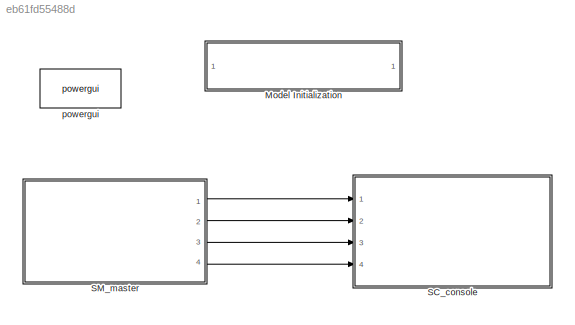
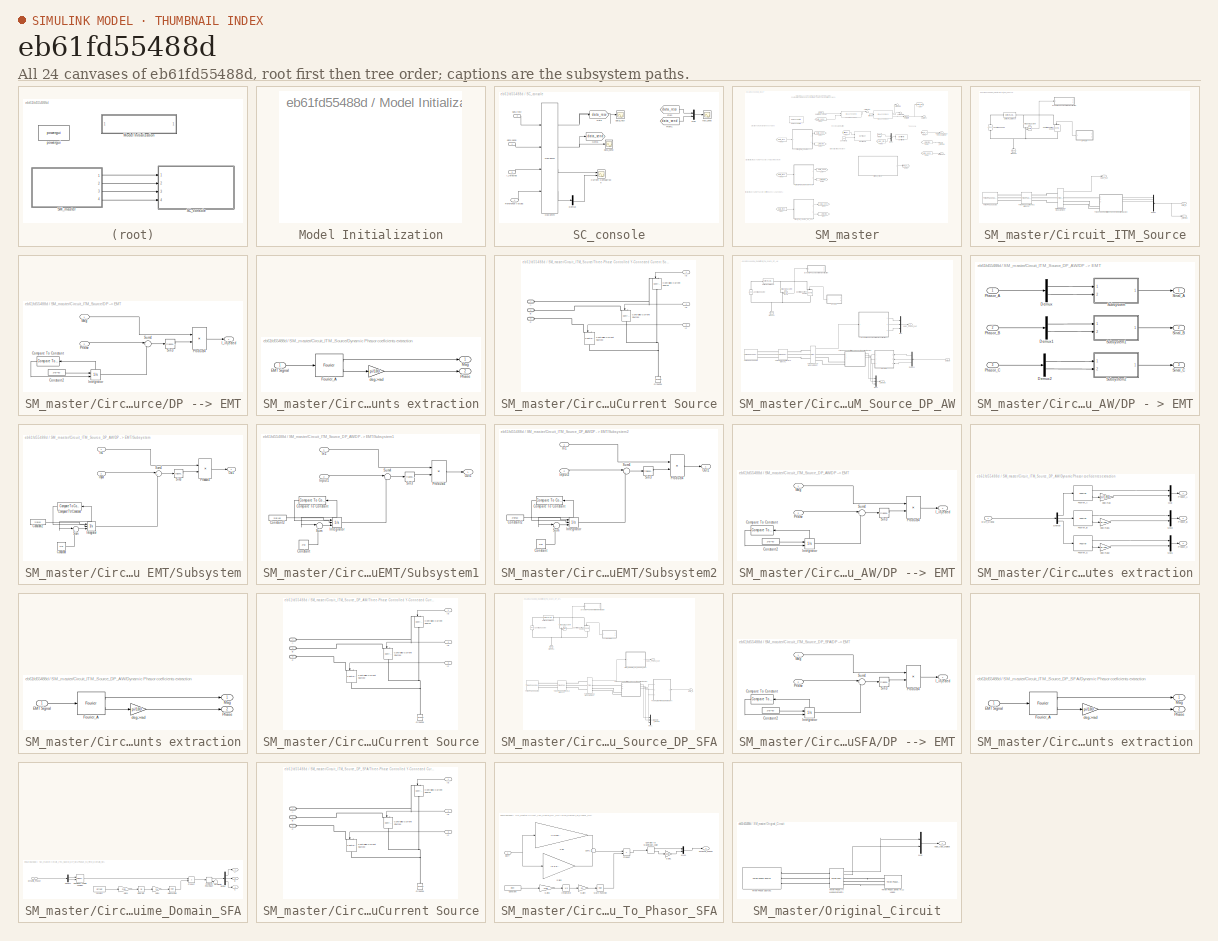
[diagram: thumbnail index - all 24 canvases of the model, root first then tree order]
MODEL slx_eb61fd55488d
KIND model
CONFIG AbsTol = auto
CONFIG EnableMultiTasking = on
CONFIG FixedStep = Ts
CONFIG InitFcn = Ts=75e-6;
CONFIG MaxStep = auto
CONFIG MinStep = auto
CONFIG PostLoadFcn = Ts=75e-6;
CONFIG RelTol = 1e-3
CONFIG SampleTimeConstraint = Unconstrained
CONFIG SolverName = ode4
CONFIG StartTime = 0.0
CONFIG StopTime = inf
BLOCK [SubSystem] Model Initialization
  AncestorBlock = artemis/Tools /Misc/Model Initialization
  CopyFcn = set_param(gcb,'LinkStatus','inactive')
  Ports = []
  RequestExecContextInheritance = off
BLOCK [SubSystem] SC_console
  Ports = [4]
  RequestExecContextInheritance = off
BLOCK [Scope] SC_console/Current Comparison
  Floating = off
  NumInputPorts = 2
  Ports = [2]
  ScopeSpecificationString = Simulink.scopes.TimeScopeBlockCfg('CurrentConfiguration', extmgr.ConfigurationSet(extmgr.Configuration('Core','General UI',true),extmgr.Configuration('Core','Source UI',true),extmgr.Configuration('Sources','WiredSimulink',true,'DataLoggingVariableName','ScopeData1'),extmgr.Configuration('Visuals','Time Domain',true),extmgr.Configuration('Tools','Plot Navigation',true),extmgr.Configuration('Tools',...<+58ch>
BLOCK [Demux] SC_console/Demux
  Outputs = 2
  Ports = [1, 2]
BLOCK [From] SC_console/From
  GotoTag = data_recv
BLOCK [From] SC_console/From1
  GotoTag = data_send
BLOCK [Goto] SC_console/Goto
  GotoTag = data_recv
BLOCK [Goto] SC_console/Goto1
  GotoTag = data_send
BLOCK [Inport] SC_console/I_injected
  Port = 3
BLOCK [Mux] SC_console/Mux
  DisplayOption = bar
  Inputs = 2
  Ports = [2, 1]
BLOCK [Reference] SC_console/OpComm  REF=rtlab/OpComm
  Ports = [4, 4]
  SourceBlock = rtlab/OpComm
  SourceProductName = RT-LAB
  SourceType = RT-LAB OpComm
BLOCK [Inport] SC_console/Reference Values
  Port = 4
BLOCK [Inport] SC_console/data recv
  Port = 2
BLOCK [Inport] SC_console/data send
BLOCK [Scope] SC_console/data_recv
  Floating = off
  NumInputPorts = 1
  Ports = [1]
  ScopeSpecificationString = Simulink.scopes.TimeScopeBlockCfg('CurrentConfiguration', extmgr.ConfigurationSet(extmgr.Configuration('Core','General UI',true),extmgr.Configuration('Core','Source UI',true),extmgr.Configuration('Sources','WiredSimulink',true,'DataLoggingVariableName','ScopeData3','DataLoggingSaveFormat','StructureWithTime','DataLoggingLimitDataPoints',true,'DataLoggingDecimation','1','DataLoggingDecimateData',tr...<+1635ch>
BLOCK [Scope] SC_console/data_send
  Floating = off
  NumInputPorts = 1
  Ports = [1]
  ScopeSpecificationString = Simulink.scopes.TimeScopeBlockCfg('CurrentConfiguration', extmgr.ConfigurationSet(extmgr.Configuration('Core','General UI',true),extmgr.Configuration('Core','Source UI',true),extmgr.Configuration('Sources','WiredSimulink',true,'DataLoggingVariableName','ScopeData4','DataLoggingSaveFormat','StructureWithTime','DataLoggingLimitDataPoints',true,'DataLoggingDecimation','1','DataLoggingDecimateData',tr...<+1928ch>
BLOCK [Scope] SC_console/recv_send
  Floating = off
  NumInputPorts = 1
  Ports = [1]
  ScopeSpecificationString = Simulink.scopes.TimeScopeBlockCfg('CurrentConfiguration', extmgr.ConfigurationSet(extmgr.Configuration('Core','General UI',true),extmgr.Configuration('Core','Source UI',true),extmgr.Configuration('Sources','WiredSimulink',true,'DataLoggingSaveFormat','StructureWithTime','DataLoggingLimitDataPoints',true,'DataLoggingDecimation','1','DataLoggingDecimateData',true),extmgr.Configuration('Visuals','Tim...<+1840ch>
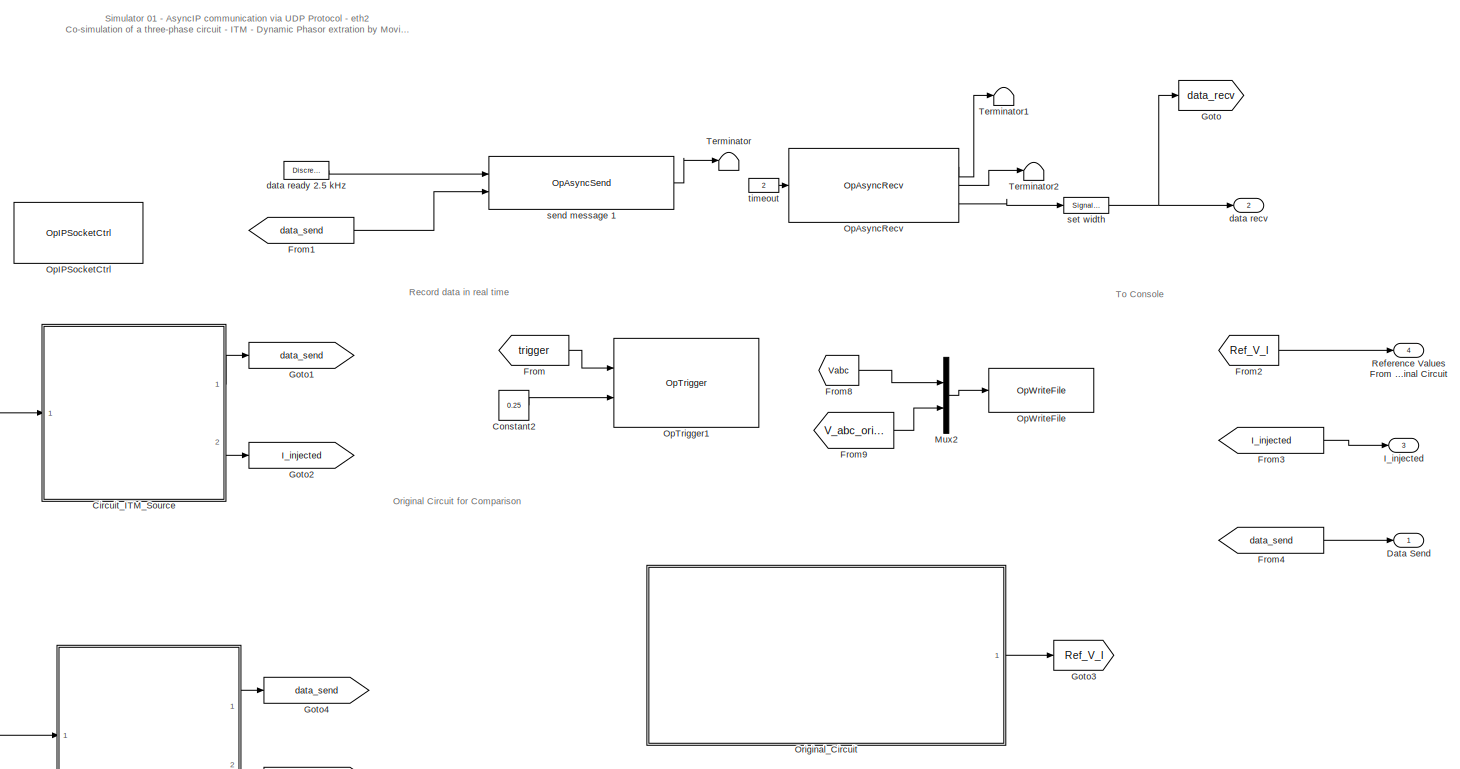
[diagram: SM_master - part 1/3, full width, middle band]
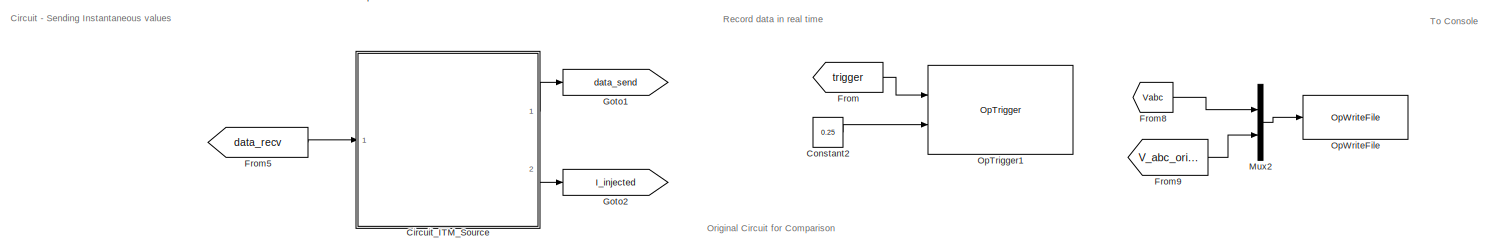
[diagram: SM_master - part 2/3, full width, middle band]
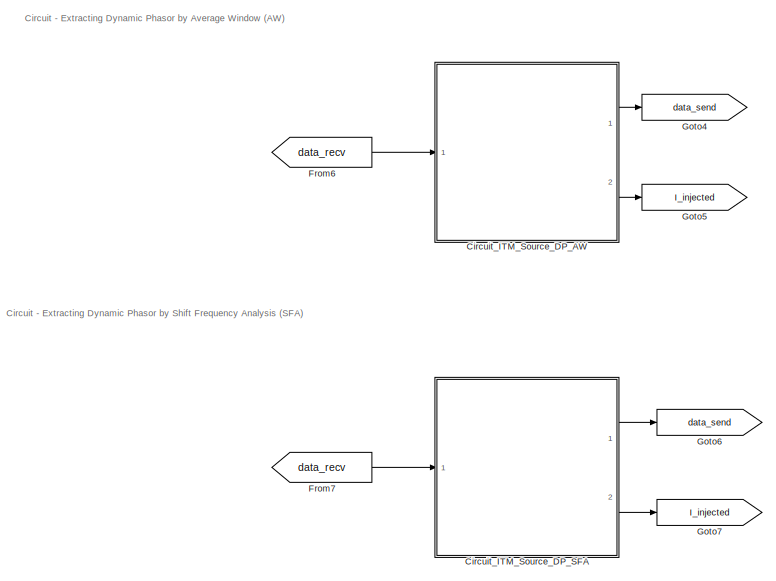
[diagram: SM_master - part 3/3, bottom left region]
BLOCK [SubSystem] SM_master
  Ports = [0, 4]
  RequestExecContextInheritance = off
BLOCK [SubSystem] SM_master/Circuit_ITM_Source
  Ports = [1, 2]
  RequestExecContextInheritance = off
BLOCK [Reference] SM_master/Circuit_ITM_Source/AC Voltage Source  REF=powerlib/Electrical
Sources/AC Voltage Source
  Commented = on
  NameLocation = right
  Ports = [0, 0, 0, 0, 0, 1, 1]
  SourceBlock = powerlib/Electrical\nSources/AC Voltage Source
  SourceProductBaseCode = PS
  SourceType = AC Voltage Source
BLOCK [Reference] SM_master/Circuit_ITM_Source/Controlled Current Source  REF=powerlib/Electrical
Sources/Controlled Current Source
  Commented = on
  NameLocation = left
  Ports = [1, 0, 0, 0, 0, 1, 1]
  SourceBlock = powerlib/Electrical\nSources/Controlled Current Source
  SourceProductBaseCode = PS
  SourceType = Controlled Current Source
BLOCK [SubSystem] SM_master/Circuit_ITM_Source/DP --> EMT
  Commented = on
  NameLocation = top
  Ports = [2, 1]
  RequestExecContextInheritance = off
BLOCK [Reference] SM_master/Circuit_ITM_Source/DP --> EMT/Compare To Constant  REF=simulink/Logic and Bit
Operations/Compare
To Constant
  NameLocation = top
  Ports = [1, 1]
  SourceBlock = simulink/Logic and Bit\nOperations/Compare\nTo Constant
  SourceProductBaseCode = SL
  SourceType = Compare To Constant
BLOCK [Constant] SM_master/Circuit_ITM_Source/DP --> EMT/Constant2
  Value = 2*pi*60
BLOCK [Outport] SM_master/Circuit_ITM_Source/DP --> EMT/I_injected
BLOCK [Integrator] SM_master/Circuit_ITM_Source/DP --> EMT/Integrator
  ExternalReset = rising
  Ports = [2, 1, 0, 0, 1]
  ShowStatePort = on
  WrapState = on
  WrappedStateLowerValue = 0
  WrappedStateUpperValue = 2*pi
BLOCK [Inport] SM_master/Circuit_ITM_Source/DP --> EMT/Mag
BLOCK [Inport] SM_master/Circuit_ITM_Source/DP --> EMT/Phase
  Port = 2
BLOCK [Product] SM_master/Circuit_ITM_Source/DP --> EMT/Product4
  Ports = [2, 1]
BLOCK [Trigonometry] SM_master/Circuit_ITM_Source/DP --> EMT/Sin3
  Ports = [1, 1]
BLOCK [Sum] SM_master/Circuit_ITM_Source/DP --> EMT/Sum4
  Inputs = |++
  NameLocation = top
  Ports = [2, 1]
BLOCK [Inport] SM_master/Circuit_ITM_Source/Data_In
  NameLocation = top
BLOCK [Demux] SM_master/Circuit_ITM_Source/Demux
  NameLocation = top
  Outputs = 3
  Ports = [1, 3]
BLOCK [SubSystem] SM_master/Circuit_ITM_Source/Dynamic Phasor coeficients extraction
  Commented = on
  Ports = [1, 2]
  RequestExecContextInheritance = off
BLOCK [Inport] SM_master/Circuit_ITM_Source/Dynamic Phasor coeficients extraction/EMT Signal
BLOCK [Reference] SM_master/Circuit_ITM_Source/Dynamic Phasor coeficients extraction/Fourier_A  REF=powerlib_meascontrol/Measurements/Fourier
  Ports = [1, 2]
  SourceBlock = powerlib_meascontrol/Measurements/Fourier
  SourceProductBaseCode = PS
  SourceType = Fourier
BLOCK [Outport] SM_master/Circuit_ITM_Source/Dynamic Phasor coeficients extraction/Mag
BLOCK [Outport] SM_master/Circuit_ITM_Source/Dynamic Phasor coeficients extraction/Phase
  Port = 2
BLOCK [Gain] SM_master/Circuit_ITM_Source/Dynamic Phasor coeficients extraction/deg->rad
  Gain = pi/180
  OutDataTypeStr = Inherit: Same as input
  ParamDataTypeStr = Inherit: Same as input
  SaturateOnIntegerOverflow = on
BLOCK [Reference] SM_master/Circuit_ITM_Source/Ground1  REF=powerlib/Elements/Ground
  Commented = on
  NameLocation = right
  Ports = [0, 0, 0, 0, 0, 1]
  SourceBlock = powerlib/Elements/Ground
  SourceProductBaseCode = PS
  SourceType = Ground
BLOCK [Outport] SM_master/Circuit_ITM_Source/I_injected
  Port = 2
BLOCK [Reference] SM_master/Circuit_ITM_Source/Series RLC Branch  REF=powerlib/Elements/Series RLC Branch
  Commented = on
  Ports = [0, 0, 0, 0, 0, 1, 1]
  SourceBlock = powerlib/Elements/Series RLC Branch
  SourceProductBaseCode = PS
  SourceType = Series RLC Branch
BLOCK [SubSystem] SM_master/Circuit_ITM_Source/Three-Phase Controlled Y-Connected Current Source
  PortSchema = {"entries":[{"content":{"sides":[{"content":{"connectorIds":["LConn1","LConn2","LConn3"]},"type":"ConnectorPlacement.EquallySpacedRectSide","uuid":"a8a67328-a09d-4495-b33c-aaf3ca0795cb"},{"content":{"connectorIds":["In1","In2","In3"],"side":"RIGHT"},"type":"ConnectorPlacement.EquallySpacedRectSide","uuid":"ca8d97e2-0dea-49aa-8cb7-235b4eace1f8"},{"content":{"connectorIds":[],"side":"TOP"},"type":"C...<+274ch>  <repeated x3 — deduplicated; at blocks: Three-Phase Controlled Y-Connected Current Sour…>
  Ports = [3, 0, 0, 0, 0, 3]
  RequestExecContextInheritance = off
BLOCK [PMIOPort] SM_master/Circuit_ITM_Source/Three-Phase Controlled Y-Connected Current Source/A
  Side = Left
BLOCK [PMIOPort] SM_master/Circuit_ITM_Source/Three-Phase Controlled Y-Connected Current Source/B
  Port = 2
  Side = Left
BLOCK [PMIOPort] SM_master/Circuit_ITM_Source/Three-Phase Controlled Y-Connected Current Source/C
  Port = 3
  Side = Left
BLOCK [Reference] SM_master/Circuit_ITM_Source/Three-Phase Controlled Y-Connected Current Source/Controlled Current Source  REF=powerlib/Electrical
Sources/Controlled Current Source
  NameLocation = right
  Ports = [1, 0, 0, 0, 0, 1, 1]
  SourceBlock = powerlib/Electrical\nSources/Controlled Current Source
  SourceProductBaseCode = PS
  SourceType = Controlled Current Source
BLOCK [Reference] SM_master/Circuit_ITM_Source/Three-Phase Controlled Y-Connected Current Source/Controlled Current Source1  REF=powerlib/Electrical
Sources/Controlled Current Source
  NameLocation = left
  Ports = [1, 0, 0, 0, 0, 1, 1]
  SourceBlock = powerlib/Electrical\nSources/Controlled Current Source
  SourceProductBaseCode = PS
  SourceType = Controlled Current Source
BLOCK [Reference] SM_master/Circuit_ITM_Source/Three-Phase Controlled Y-Connected Current Source/Controlled Current Source2  REF=powerlib/Electrical
Sources/Controlled Current Source
  NameLocation = left
  Ports = [1, 0, 0, 0, 0, 1, 1]
  SourceBlock = powerlib/Electrical\nSources/Controlled Current Source
  SourceProductBaseCode = PS
  SourceType = Controlled Current Source
BLOCK [Reference] SM_master/Circuit_ITM_Source/Three-Phase Controlled Y-Connected Current Source/Ground1  REF=powerlib/Elements/Ground
  NameLocation = right
  Ports = [0, 0, 0, 0, 0, 1]
  SourceBlock = powerlib/Elements/Ground
  SourceProductBaseCode = PS
  SourceType = Ground
BLOCK [Inport] SM_master/Circuit_ITM_Source/Three-Phase Controlled Y-Connected Current Source/Ia
  NameLocation = top
BLOCK [Inport] SM_master/Circuit_ITM_Source/Three-Phase Controlled Y-Connected Current Source/Ib
  NameLocation = top
  Port = 2
BLOCK [Inport] SM_master/Circuit_ITM_Source/Three-Phase Controlled Y-Connected Current Source/Ic
  NameLocation = top
  Port = 3
BLOCK [Reference] SM_master/Circuit_ITM_Source/Three-Phase Series RLC Branch1  REF=powerlib/Elements/Three-Phase
Series RLC Branch
  AttributesFormatString = \n
  Ports = [0, 0, 0, 0, 0, 3, 3]
  SourceBlock = powerlib/Elements/Three-Phase\nSeries RLC Branch
  SourceProductBaseCode = PS
  SourceType = Three-Phase Series RLC Branch
BLOCK [Reference] SM_master/Circuit_ITM_Source/Three-Phase Source  REF=powerlib/Electrical
Sources/Three-Phase Source
  Ports = [0, 0, 0, 0, 0, 0, 3]
  SourceBlock = powerlib/Electrical\nSources/Three-Phase Source
  SourceProductBaseCode = PS
  SourceType = Three-Phase Source
BLOCK [Reference] SM_master/Circuit_ITM_Source/Three-Phase V-I Measurement  REF=powerlib/Measurements/Three-Phase
V-I Measurement
  Ports = [0, 2, 0, 0, 0, 3, 3]
  SourceBlock = powerlib/Measurements/Three-Phase\nV-I Measurement
  SourceProductBaseCode = PS
  SourceType = Three-Phase VI Measurement
BLOCK [Outport] SM_master/Circuit_ITM_Source/Vabc_out
BLOCK [Reference] SM_master/Circuit_ITM_Source/Voltage Measurement  REF=powerlib/Measurements/Voltage Measurement
  Commented = on
  Ports = [0, 1, 0, 0, 0, 2]
  SourceBlock = powerlib/Measurements/Voltage Measurement
  SourceProductBaseCode = PS
  SourceType = Voltage Measurement
  UserDataPersistent = on
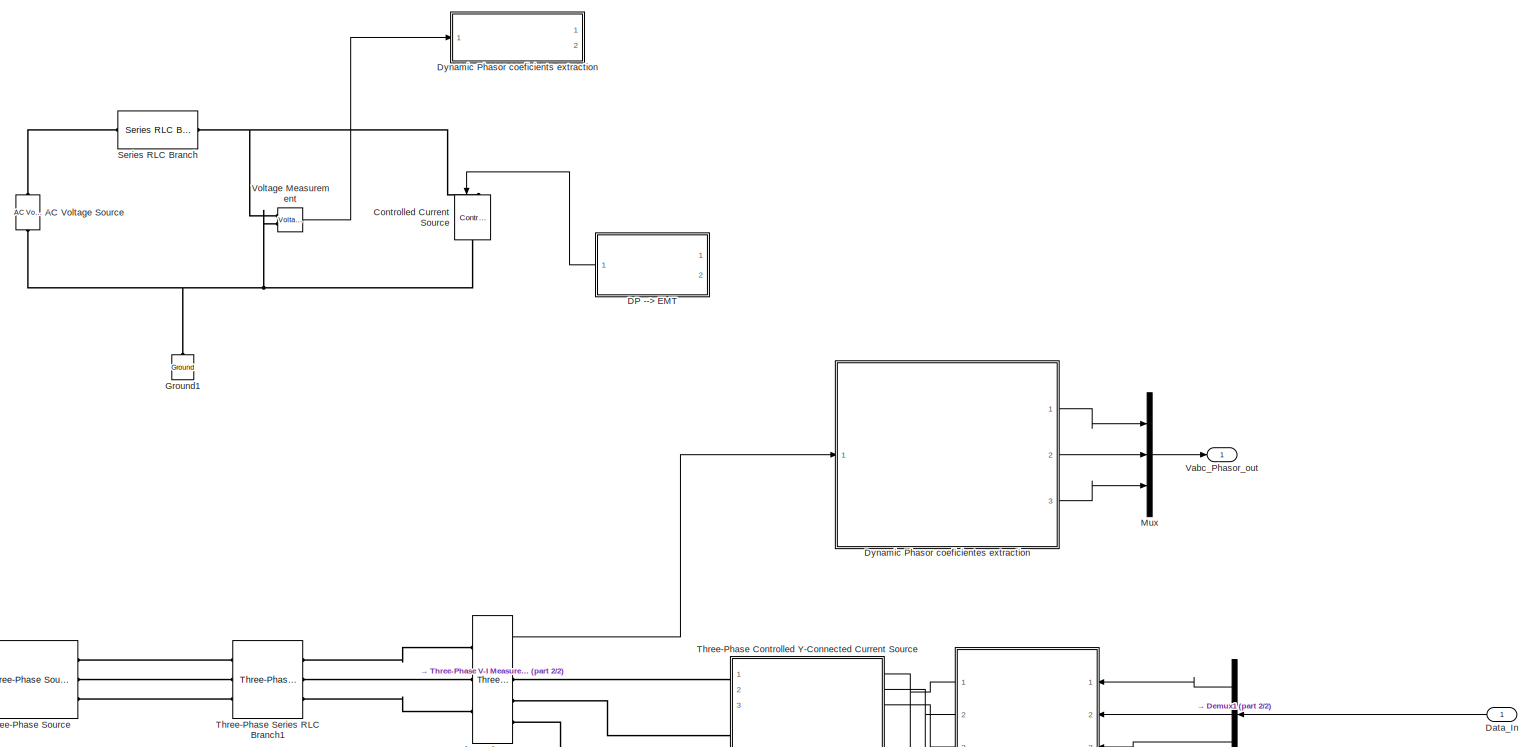
[diagram: SM_master/Circuit_ITM_Source_DP_AW - part 1/2, most of the canvas]
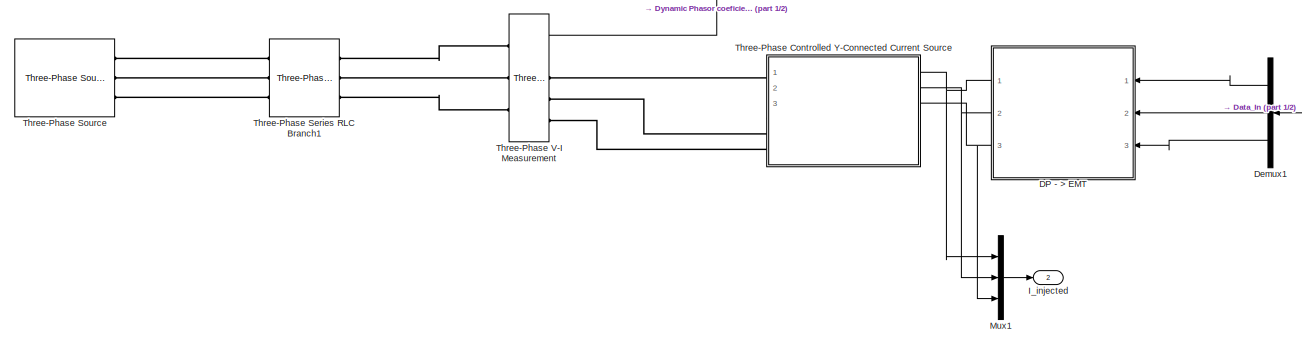
[diagram: SM_master/Circuit_ITM_Source_DP_AW - part 2/2, full width, bottom band]
BLOCK [SubSystem] SM_master/Circuit_ITM_Source_DP_AW
  Commented = on
  Ports = [1, 2]
  RequestExecContextInheritance = off
BLOCK [Reference] SM_master/Circuit_ITM_Source_DP_AW/AC Voltage Source  REF=powerlib/Electrical
Sources/AC Voltage Source
  Commented = on
  NameLocation = right
  Ports = [0, 0, 0, 0, 0, 1, 1]
  SourceBlock = powerlib/Electrical\nSources/AC Voltage Source
  SourceProductBaseCode = PS
  SourceType = AC Voltage Source
BLOCK [Reference] SM_master/Circuit_ITM_Source_DP_AW/Controlled Current Source  REF=powerlib/Electrical
Sources/Controlled Current Source
  Commented = on
  NameLocation = left
  Ports = [1, 0, 0, 0, 0, 1, 1]
  SourceBlock = powerlib/Electrical\nSources/Controlled Current Source
  SourceProductBaseCode = PS
  SourceType = Controlled Current Source
BLOCK [SubSystem] SM_master/Circuit_ITM_Source_DP_AW/DP - > EMT
  NameLocation = top
  Ports = [3, 3]
  RequestExecContextInheritance = off
BLOCK [Demux] SM_master/Circuit_ITM_Source_DP_AW/DP - > EMT/Demux
  Outputs = 2
  Ports = [1, 2]
BLOCK [Demux] SM_master/Circuit_ITM_Source_DP_AW/DP - > EMT/Demux1
  Outputs = 2
  Ports = [1, 2]
BLOCK [Demux] SM_master/Circuit_ITM_Source_DP_AW/DP - > EMT/Demux2
  Outputs = 2
  Ports = [1, 2]
BLOCK [Inport] SM_master/Circuit_ITM_Source_DP_AW/DP - > EMT/Phasor_A
BLOCK [Inport] SM_master/Circuit_ITM_Source_DP_AW/DP - > EMT/Phasor_B
  Port = 2
BLOCK [Inport] SM_master/Circuit_ITM_Source_DP_AW/DP - > EMT/Phasor_C
  Port = 3
BLOCK [Outport] SM_master/Circuit_ITM_Source_DP_AW/DP - > EMT/Sinal_A
BLOCK [Outport] SM_master/Circuit_ITM_Source_DP_AW/DP - > EMT/Sinal_B
  Port = 2
BLOCK [Outport] SM_master/Circuit_ITM_Source_DP_AW/DP - > EMT/Sinal_C
  Port = 3
BLOCK [SubSystem] SM_master/Circuit_ITM_Source_DP_AW/DP - > EMT/Subsystem
  Ports = [2, 1]
  RequestExecContextInheritance = off
BLOCK [Reference] SM_master/Circuit_ITM_Source_DP_AW/DP - > EMT/Subsystem/Compare To Constant  REF=simulink/Logic and Bit
Operations/Compare
To Constant
  NameLocation = top
  Ports = [1, 1]
  SourceBlock = simulink/Logic and Bit\nOperations/Compare\nTo Constant
  SourceProductBaseCode = SL
  SourceType = Compare To Constant
BLOCK [Constant] SM_master/Circuit_ITM_Source_DP_AW/DP - > EMT/Subsystem/Constant
  Value = 2*pi
BLOCK [Constant] SM_master/Circuit_ITM_Source_DP_AW/DP - > EMT/Subsystem/Constant2
  Value = 2*pi*60
BLOCK [Inport] SM_master/Circuit_ITM_Source_DP_AW/DP - > EMT/Subsystem/In1
BLOCK [Inport] SM_master/Circuit_ITM_Source_DP_AW/DP - > EMT/Subsystem/Input
  Port = 2
BLOCK [Integrator] SM_master/Circuit_ITM_Source_DP_AW/DP - > EMT/Subsystem/Integrator
  ExternalReset = rising
  InitialConditionSource = external
  Ports = [3, 1, 0, 0, 1]
  ShowStatePort = on
BLOCK [Outport] SM_master/Circuit_ITM_Source_DP_AW/DP - > EMT/Subsystem/Out1
BLOCK [Product] SM_master/Circuit_ITM_Source_DP_AW/DP - > EMT/Subsystem/Product4
  Ports = [2, 1]
BLOCK [Trigonometry] SM_master/Circuit_ITM_Source_DP_AW/DP - > EMT/Subsystem/Sin3
  Ports = [1, 1]
BLOCK [Sum] SM_master/Circuit_ITM_Source_DP_AW/DP - > EMT/Subsystem/Sum
  Inputs = |+-
  Ports = [2, 1]
BLOCK [Sum] SM_master/Circuit_ITM_Source_DP_AW/DP - > EMT/Subsystem/Sum4
  Inputs = |++
  NameLocation = top
  Ports = [2, 1]
BLOCK [SubSystem] SM_master/Circuit_ITM_Source_DP_AW/DP - > EMT/Subsystem1
  Ports = [2, 1]
  RequestExecContextInheritance = off
BLOCK [Reference] SM_master/Circuit_ITM_Source_DP_AW/DP - > EMT/Subsystem1/Compare To Constant  REF=simulink/Logic and Bit
Operations/Compare
To Constant
  NameLocation = top
  Ports = [1, 1]
  SourceBlock = simulink/Logic and Bit\nOperations/Compare\nTo Constant
  SourceProductBaseCode = SL
  SourceType = Compare To Constant
BLOCK [Constant] SM_master/Circuit_ITM_Source_DP_AW/DP - > EMT/Subsystem1/Constant
  Value = 2*pi
BLOCK [Constant] SM_master/Circuit_ITM_Source_DP_AW/DP - > EMT/Subsystem1/Constant2
  Value = 2*pi*60
BLOCK [Inport] SM_master/Circuit_ITM_Source_DP_AW/DP - > EMT/Subsystem1/In1
BLOCK [Inport] SM_master/Circuit_ITM_Source_DP_AW/DP - > EMT/Subsystem1/Input1
  Port = 2
BLOCK [Integrator] SM_master/Circuit_ITM_Source_DP_AW/DP - > EMT/Subsystem1/Integrator
  ExternalReset = rising
  InitialConditionSource = external
  Ports = [3, 1, 0, 0, 1]
  ShowStatePort = on
BLOCK [Outport] SM_master/Circuit_ITM_Source_DP_AW/DP - > EMT/Subsystem1/Out1
BLOCK [Product] SM_master/Circuit_ITM_Source_DP_AW/DP - > EMT/Subsystem1/Product4
  Ports = [2, 1]
BLOCK [Trigonometry] SM_master/Circuit_ITM_Source_DP_AW/DP - > EMT/Subsystem1/Sin3
  Ports = [1, 1]
BLOCK [Sum] SM_master/Circuit_ITM_Source_DP_AW/DP - > EMT/Subsystem1/Sum
  Inputs = |+-
  Ports = [2, 1]
BLOCK [Sum] SM_master/Circuit_ITM_Source_DP_AW/DP - > EMT/Subsystem1/Sum4
  Inputs = |++
  NameLocation = top
  Ports = [2, 1]
BLOCK [SubSystem] SM_master/Circuit_ITM_Source_DP_AW/DP - > EMT/Subsystem2
  Ports = [2, 1]
  RequestExecContextInheritance = off
BLOCK [Reference] SM_master/Circuit_ITM_Source_DP_AW/DP - > EMT/Subsystem2/Compare To Constant  REF=simulink/Logic and Bit
Operations/Compare
To Constant
  NameLocation = top
  Ports = [1, 1]
  SourceBlock = simulink/Logic and Bit\nOperations/Compare\nTo Constant
  SourceProductBaseCode = SL
  SourceType = Compare To Constant
BLOCK [Constant] SM_master/Circuit_ITM_Source_DP_AW/DP - > EMT/Subsystem2/Constant
  Value = 2*pi
BLOCK [Constant] SM_master/Circuit_ITM_Source_DP_AW/DP - > EMT/Subsystem2/Constant2
  Value = 2*pi*60
BLOCK [Inport] SM_master/Circuit_ITM_Source_DP_AW/DP - > EMT/Subsystem2/In1
BLOCK [Inport] SM_master/Circuit_ITM_Source_DP_AW/DP - > EMT/Subsystem2/Input2
  Port = 2
BLOCK [Integrator] SM_master/Circuit_ITM_Source_DP_AW/DP - > EMT/Subsystem2/Integrator
  ExternalReset = rising
  InitialConditionSource = external
  Ports = [3, 1, 0, 0, 1]
  ShowStatePort = on
BLOCK [Outport] SM_master/Circuit_ITM_Source_DP_AW/DP - > EMT/Subsystem2/Out1
BLOCK [Product] SM_master/Circuit_ITM_Source_DP_AW/DP - > EMT/Subsystem2/Product4
  Ports = [2, 1]
BLOCK [Trigonometry] SM_master/Circuit_ITM_Source_DP_AW/DP - > EMT/Subsystem2/Sin3
  Ports = [1, 1]
BLOCK [Sum] SM_master/Circuit_ITM_Source_DP_AW/DP - > EMT/Subsystem2/Sum
  Inputs = |+-
  Ports = [2, 1]
BLOCK [Sum] SM_master/Circuit_ITM_Source_DP_AW/DP - > EMT/Subsystem2/Sum4
  Inputs = |++
  NameLocation = top
  Ports = [2, 1]
BLOCK [SubSystem] SM_master/Circuit_ITM_Source_DP_AW/DP --> EMT
  Commented = on
  NameLocation = top
  Ports = [2, 1]
  RequestExecContextInheritance = off
BLOCK [Reference] SM_master/Circuit_ITM_Source_DP_AW/DP --> EMT/Compare To Constant  REF=simulink/Logic and Bit
Operations/Compare
To Constant
  NameLocation = top
  Ports = [1, 1]
  SourceBlock = simulink/Logic and Bit\nOperations/Compare\nTo Constant
  SourceProductBaseCode = SL
  SourceType = Compare To Constant
BLOCK [Constant] SM_master/Circuit_ITM_Source_DP_AW/DP --> EMT/Constant2
  Value = 2*pi*60
BLOCK [Outport] SM_master/Circuit_ITM_Source_DP_AW/DP --> EMT/I_injected
BLOCK [Integrator] SM_master/Circuit_ITM_Source_DP_AW/DP --> EMT/Integrator
  ExternalReset = rising
  Ports = [2, 1, 0, 0, 1]
  ShowStatePort = on
  WrapState = on
  WrappedStateLowerValue = 0
  WrappedStateUpperValue = 2*pi
BLOCK [Inport] SM_master/Circuit_ITM_Source_DP_AW/DP --> EMT/Mag
BLOCK [Inport] SM_master/Circuit_ITM_Source_DP_AW/DP --> EMT/Phase
  Port = 2
BLOCK [Product] SM_master/Circuit_ITM_Source_DP_AW/DP --> EMT/Product4
  Ports = [2, 1]
BLOCK [Trigonometry] SM_master/Circuit_ITM_Source_DP_AW/DP --> EMT/Sin3
  Ports = [1, 1]
BLOCK [Sum] SM_master/Circuit_ITM_Source_DP_AW/DP --> EMT/Sum4
  Inputs = |++
  NameLocation = top
  Ports = [2, 1]
BLOCK [Inport] SM_master/Circuit_ITM_Source_DP_AW/Data_In
  NameLocation = top
BLOCK [Demux] SM_master/Circuit_ITM_Source_DP_AW/Demux1
  NameLocation = top
  Outputs = 3
  Ports = [1, 3]
BLOCK [SubSystem] SM_master/Circuit_ITM_Source_DP_AW/Dynamic Phasor coeficientes extraction
  Ports = [1, 3]
  RequestExecContextInheritance = off
BLOCK [Demux] SM_master/Circuit_ITM_Source_DP_AW/Dynamic Phasor coeficientes extraction/Demux
  Outputs = 3
  Ports = [1, 3]
BLOCK [Inport] SM_master/Circuit_ITM_Source_DP_AW/Dynamic Phasor coeficientes extraction/EMT_Signal
BLOCK [Reference] SM_master/Circuit_ITM_Source_DP_AW/Dynamic Phasor coeficientes extraction/Fourier_A  REF=powerlib_meascontrol/Measurements/Fourier
  Ports = [1, 2]
  SourceBlock = powerlib_meascontrol/Measurements/Fourier
  SourceProductBaseCode = PS
  SourceType = Fourier
BLOCK [Reference] SM_master/Circuit_ITM_Source_DP_AW/Dynamic Phasor coeficientes extraction/Fourier_B  REF=powerlib_meascontrol/Measurements/Fourier
  Ports = [1, 2]
  SourceBlock = powerlib_meascontrol/Measurements/Fourier
  SourceProductBaseCode = PS
  SourceType = Fourier
BLOCK [Reference] SM_master/Circuit_ITM_Source_DP_AW/Dynamic Phasor coeficientes extraction/Fourier_C  REF=powerlib_meascontrol/Measurements/Fourier
  Ports = [1, 2]
  SourceBlock = powerlib_meascontrol/Measurements/Fourier
  SourceProductBaseCode = PS
  SourceType = Fourier
BLOCK [Mux] SM_master/Circuit_ITM_Source_DP_AW/Dynamic Phasor coeficientes extraction/Mux
  DisplayOption = bar
  Inputs = 2
  Ports = [2, 1]
BLOCK [Mux] SM_master/Circuit_ITM_Source_DP_AW/Dynamic Phasor coeficientes extraction/Mux1
  DisplayOption = bar
  Inputs = 2
  Ports = [2, 1]
BLOCK [Mux] SM_master/Circuit_ITM_Source_DP_AW/Dynamic Phasor coeficientes extraction/Mux2
  DisplayOption = bar
  Inputs = 2
  Ports = [2, 1]
BLOCK [Outport] SM_master/Circuit_ITM_Source_DP_AW/Dynamic Phasor coeficientes extraction/Phasor_A
BLOCK [Outport] SM_master/Circuit_ITM_Source_DP_AW/Dynamic Phasor coeficientes extraction/Phasor_B
  Port = 2
BLOCK [Outport] SM_master/Circuit_ITM_Source_DP_AW/Dynamic Phasor coeficientes extraction/Phasor_C
  Port = 3
BLOCK [Gain] SM_master/Circuit_ITM_Source_DP_AW/Dynamic Phasor coeficientes extraction/deg->rad
  Gain = pi/180
  OutDataTypeStr = Inherit: Same as input
  ParamDataTypeStr = Inherit: Same as input
  SaturateOnIntegerOverflow = on
BLOCK [Gain] SM_master/Circuit_ITM_Source_DP_AW/Dynamic Phasor coeficientes extraction/deg->rad1
  Gain = pi/180
  OutDataTypeStr = Inherit: Same as input
  ParamDataTypeStr = Inherit: Same as input
  SaturateOnIntegerOverflow = on
BLOCK [Gain] SM_master/Circuit_ITM_Source_DP_AW/Dynamic Phasor coeficientes extraction/deg->rad2
  Gain = pi/180
  OutDataTypeStr = Inherit: Same as input
  ParamDataTypeStr = Inherit: Same as input
  SaturateOnIntegerOverflow = on
BLOCK [SubSystem] SM_master/Circuit_ITM_Source_DP_AW/Dynamic Phasor coeficients extraction
  Commented = on
  Ports = [1, 2]
  RequestExecContextInheritance = off
BLOCK [Inport] SM_master/Circuit_ITM_Source_DP_AW/Dynamic Phasor coeficients extraction/EMT Signal
BLOCK [Reference] SM_master/Circuit_ITM_Source_DP_AW/Dynamic Phasor coeficients extraction/Fourier_A  REF=powerlib_meascontrol/Measurements/Fourier
  Ports = [1, 2]
  SourceBlock = powerlib_meascontrol/Measurements/Fourier
  SourceProductBaseCode = PS
  SourceType = Fourier
BLOCK [Outport] SM_master/Circuit_ITM_Source_DP_AW/Dynamic Phasor coeficients extraction/Mag
BLOCK [Outport] SM_master/Circuit_ITM_Source_DP_AW/Dynamic Phasor coeficients extraction/Phase
  Port = 2
BLOCK [Gain] SM_master/Circuit_ITM_Source_DP_AW/Dynamic Phasor coeficients extraction/deg->rad
  Gain = pi/180
  OutDataTypeStr = Inherit: Same as input
  ParamDataTypeStr = Inherit: Same as input
  SaturateOnIntegerOverflow = on
BLOCK [Reference] SM_master/Circuit_ITM_Source_DP_AW/Ground1  REF=powerlib/Elements/Ground
  Commented = on
  NameLocation = right
  Ports = [0, 0, 0, 0, 0, 1]
  SourceBlock = powerlib/Elements/Ground
  SourceProductBaseCode = PS
  SourceType = Ground
BLOCK [Outport] SM_master/Circuit_ITM_Source_DP_AW/I_injected
  Port = 2
BLOCK [Mux] SM_master/Circuit_ITM_Source_DP_AW/Mux
  DisplayOption = bar
  Inputs = 3
  Ports = [3, 1]
BLOCK [Mux] SM_master/Circuit_ITM_Source_DP_AW/Mux1
  DisplayOption = bar
  Inputs = 3
  Ports = [3, 1]
BLOCK [Reference] SM_master/Circuit_ITM_Source_DP_AW/Series RLC Branch  REF=powerlib/Elements/Series RLC Branch
  Commented = on
  Ports = [0, 0, 0, 0, 0, 1, 1]
  SourceBlock = powerlib/Elements/Series RLC Branch
  SourceProductBaseCode = PS
  SourceType = Series RLC Branch
BLOCK [SubSystem] SM_master/Circuit_ITM_Source_DP_AW/Three-Phase Controlled Y-Connected Current Source
  Ports = [3, 0, 0, 0, 0, 3]
  RequestExecContextInheritance = off
BLOCK [PMIOPort] SM_master/Circuit_ITM_Source_DP_AW/Three-Phase Controlled Y-Connected Current Source/A
  Side = Left
BLOCK [PMIOPort] SM_master/Circuit_ITM_Source_DP_AW/Three-Phase Controlled Y-Connected Current Source/B
  Port = 2
  Side = Left
BLOCK [PMIOPort] SM_master/Circuit_ITM_Source_DP_AW/Three-Phase Controlled Y-Connected Current Source/C
  Port = 3
  Side = Left
BLOCK [Reference] SM_master/Circuit_ITM_Source_DP_AW/Three-Phase Controlled Y-Connected Current Source/Controlled Current Source  REF=powerlib/Electrical
Sources/Controlled Current Source
  NameLocation = right
  Ports = [1, 0, 0, 0, 0, 1, 1]
  SourceBlock = powerlib/Electrical\nSources/Controlled Current Source
  SourceProductBaseCode = PS
  SourceType = Controlled Current Source
BLOCK [Reference] SM_master/Circuit_ITM_Source_DP_AW/Three-Phase Controlled Y-Connected Current Source/Controlled Current Source1  REF=powerlib/Electrical
Sources/Controlled Current Source
  NameLocation = left
  Ports = [1, 0, 0, 0, 0, 1, 1]
  SourceBlock = powerlib/Electrical\nSources/Controlled Current Source
  SourceProductBaseCode = PS
  SourceType = Controlled Current Source
BLOCK [Reference] SM_master/Circuit_ITM_Source_DP_AW/Three-Phase Controlled Y-Connected Current Source/Controlled Current Source2  REF=powerlib/Electrical
Sources/Controlled Current Source
  NameLocation = left
  Ports = [1, 0, 0, 0, 0, 1, 1]
  SourceBlock = powerlib/Electrical\nSources/Controlled Current Source
  SourceProductBaseCode = PS
  SourceType = Controlled Current Source
BLOCK [Reference] SM_master/Circuit_ITM_Source_DP_AW/Three-Phase Controlled Y-Connected Current Source/Ground1  REF=powerlib/Elements/Ground
  NameLocation = right
  Ports = [0, 0, 0, 0, 0, 1]
  SourceBlock = powerlib/Elements/Ground
  SourceProductBaseCode = PS
  SourceType = Ground
BLOCK [Inport] SM_master/Circuit_ITM_Source_DP_AW/Three-Phase Controlled Y-Connected Current Source/Ia
  NameLocation = top
BLOCK [Inport] SM_master/Circuit_ITM_Source_DP_AW/Three-Phase Controlled Y-Connected Current Source/Ib
  NameLocation = top
  Port = 2
BLOCK [Inport] SM_master/Circuit_ITM_Source_DP_AW/Three-Phase Controlled Y-Connected Current Source/Ic
  NameLocation = top
  Port = 3
BLOCK [Reference] SM_master/Circuit_ITM_Source_DP_AW/Three-Phase Series RLC Branch1  REF=powerlib/Elements/Three-Phase
Series RLC Branch
  AttributesFormatString = \n
  Ports = [0, 0, 0, 0, 0, 3, 3]
  SourceBlock = powerlib/Elements/Three-Phase\nSeries RLC Branch
  SourceProductBaseCode = PS
  SourceType = Three-Phase Series RLC Branch
BLOCK [Reference] SM_master/Circuit_ITM_Source_DP_AW/Three-Phase Source  REF=powerlib/Electrical
Sources/Three-Phase Source
  Ports = [0, 0, 0, 0, 0, 0, 3]
  SourceBlock = powerlib/Electrical\nSources/Three-Phase Source
  SourceProductBaseCode = PS
  SourceType = Three-Phase Source
BLOCK [Reference] SM_master/Circuit_ITM_Source_DP_AW/Three-Phase V-I Measurement  REF=powerlib/Measurements/Three-Phase
V-I Measurement
  Ports = [0, 2, 0, 0, 0, 3, 3]
  SourceBlock = powerlib/Measurements/Three-Phase\nV-I Measurement
  SourceProductBaseCode = PS
  SourceType = Three-Phase VI Measurement
BLOCK [Outport] SM_master/Circuit_ITM_Source_DP_AW/Vabc_Phasor_out
BLOCK [Reference] SM_master/Circuit_ITM_Source_DP_AW/Voltage Measurement  REF=powerlib/Measurements/Voltage Measurement
  Commented = on
  Ports = [0, 1, 0, 0, 0, 2]
  SourceBlock = powerlib/Measurements/Voltage Measurement
  SourceProductBaseCode = PS
  SourceType = Voltage Measurement
  UserDataPersistent = on
BLOCK [SubSystem] SM_master/Circuit_ITM_Source_DP_SFA
  Commented = on
  Ports = [1, 2]
  RequestExecContextInheritance = off
BLOCK [Reference] SM_master/Circuit_ITM_Source_DP_SFA/AC Voltage Source  REF=powerlib/Electrical
Sources/AC Voltage Source
  Commented = on
  NameLocation = right
  Ports = [0, 0, 0, 0, 0, 1, 1]
  SourceBlock = powerlib/Electrical\nSources/AC Voltage Source
  SourceProductBaseCode = PS
  SourceType = AC Voltage Source
BLOCK [Reference] SM_master/Circuit_ITM_Source_DP_SFA/Controlled Current Source  REF=powerlib/Electrical
Sources/Controlled Current Source
  Commented = on
  NameLocation = left
  Ports = [1, 0, 0, 0, 0, 1, 1]
  SourceBlock = powerlib/Electrical\nSources/Controlled Current Source
  SourceProductBaseCode = PS
  SourceType = Controlled Current Source
BLOCK [SubSystem] SM_master/Circuit_ITM_Source_DP_SFA/DP --> EMT
  Commented = on
  NameLocation = top
  Ports = [2, 1]
  RequestExecContextInheritance = off
BLOCK [Reference] SM_master/Circuit_ITM_Source_DP_SFA/DP --> EMT/Compare To Constant  REF=simulink/Logic and Bit
Operations/Compare
To Constant
  NameLocation = top
  Ports = [1, 1]
  SourceBlock = simulink/Logic and Bit\nOperations/Compare\nTo Constant
  SourceProductBaseCode = SL
  SourceType = Compare To Constant
BLOCK [Constant] SM_master/Circuit_ITM_Source_DP_SFA/DP --> EMT/Constant2
  Value = 2*pi*60
BLOCK [Outport] SM_master/Circuit_ITM_Source_DP_SFA/DP --> EMT/I_injected
BLOCK [Integrator] SM_master/Circuit_ITM_Source_DP_SFA/DP --> EMT/Integrator
  ExternalReset = rising
  Ports = [2, 1, 0, 0, 1]
  ShowStatePort = on
  WrapState = on
  WrappedStateLowerValue = 0
  WrappedStateUpperValue = 2*pi
BLOCK [Inport] SM_master/Circuit_ITM_Source_DP_SFA/DP --> EMT/Mag
BLOCK [Inport] SM_master/Circuit_ITM_Source_DP_SFA/DP --> EMT/Phase
  Port = 2
BLOCK [Product] SM_master/Circuit_ITM_Source_DP_SFA/DP --> EMT/Product4
  Ports = [2, 1]
BLOCK [Trigonometry] SM_master/Circuit_ITM_Source_DP_SFA/DP --> EMT/Sin3
  Ports = [1, 1]
BLOCK [Sum] SM_master/Circuit_ITM_Source_DP_SFA/DP --> EMT/Sum4
  Inputs = |++
  NameLocation = top
  Ports = [2, 1]
BLOCK [Inport] SM_master/Circuit_ITM_Source_DP_SFA/Data_In
  NameLocation = top
BLOCK [SubSystem] SM_master/Circuit_ITM_Source_DP_SFA/Dynamic Phasor coeficients extraction
  Commented = on
  Ports = [1, 2]
  RequestExecContextInheritance = off
BLOCK [Inport] SM_master/Circuit_ITM_Source_DP_SFA/Dynamic Phasor coeficients extraction/EMT Signal
BLOCK [Reference] SM_master/Circuit_ITM_Source_DP_SFA/Dynamic Phasor coeficients extraction/Fourier_A  REF=powerlib_meascontrol/Measurements/Fourier
  Ports = [1, 2]
  SourceBlock = powerlib_meascontrol/Measurements/Fourier
  SourceProductBaseCode = PS
  SourceType = Fourier
BLOCK [Outport] SM_master/Circuit_ITM_Source_DP_SFA/Dynamic Phasor coeficients extraction/Mag
BLOCK [Outport] SM_master/Circuit_ITM_Source_DP_SFA/Dynamic Phasor coeficients extraction/Phase
  Port = 2
BLOCK [Gain] SM_master/Circuit_ITM_Source_DP_SFA/Dynamic Phasor coeficients extraction/deg->rad
  Gain = pi/180
  OutDataTypeStr = Inherit: Same as input
  ParamDataTypeStr = Inherit: Same as input
  SaturateOnIntegerOverflow = on
BLOCK [Reference] SM_master/Circuit_ITM_Source_DP_SFA/Ground1  REF=powerlib/Elements/Ground
  Commented = on
  NameLocation = right
  Ports = [0, 0, 0, 0, 0, 1]
  SourceBlock = powerlib/Elements/Ground
  SourceProductBaseCode = PS
  SourceType = Ground
BLOCK [Outport] SM_master/Circuit_ITM_Source_DP_SFA/I_injected
  Port = 2
BLOCK [Mux] SM_master/Circuit_ITM_Source_DP_SFA/Mux1
  DisplayOption = bar
  Inputs = 3
  Ports = [3, 1]
BLOCK [SubSystem] SM_master/Circuit_ITM_Source_DP_SFA/Phasor_to_Time_Domain_SFA
  NameLocation = top
  Ports = [1, 3]
  RequestExecContextInheritance = off
BLOCK [Outport] SM_master/Circuit_ITM_Source_DP_SFA/Phasor_to_Time_Domain_SFA/A
BLOCK [Outport] SM_master/Circuit_ITM_Source_DP_SFA/Phasor_to_Time_Domain_SFA/B
  Port = 2
BLOCK [Outport] SM_master/Circuit_ITM_Source_DP_SFA/Phasor_to_Time_Domain_SFA/C
  Port = 3
BLOCK [ComplexToRealImag] SM_master/Circuit_ITM_Source_DP_SFA/Phasor_to_Time_Domain_SFA/Complex to Real-Imag4
  Ports = [1, 2]
BLOCK [Constant] SM_master/Circuit_ITM_Source_DP_SFA/Phasor_to_Time_Domain_SFA/Constant
  Value = offset
BLOCK [Demux] SM_master/Circuit_ITM_Source_DP_SFA/Phasor_to_Time_Domain_SFA/Demux
  Commented = on
  Outputs = 3
  Ports = [1, 3]
BLOCK [Demux] SM_master/Circuit_ITM_Source_DP_SFA/Phasor_to_Time_Domain_SFA/Demux1
  Outputs = 2
  Ports = [1, 2]
BLOCK [Inport] SM_master/Circuit_ITM_Source_DP_SFA/Phasor_to_Time_Domain_SFA/Dynamic_Phasor
BLOCK [Gain] SM_master/Circuit_ITM_Source_DP_SFA/Phasor_to_Time_Domain_SFA/Gain3
  Gain = 2*pi
BLOCK [Gain] SM_master/Circuit_ITM_Source_DP_SFA/Phasor_to_Time_Domain_SFA/Gain4
  Gain = j*1
BLOCK [Integrator] SM_master/Circuit_ITM_Source_DP_SFA/Phasor_to_Time_Domain_SFA/Integrator
  Ports = [1, 1]
BLOCK [MagnitudeAngleToComplex] SM_master/Circuit_ITM_Source_DP_SFA/Phasor_to_Time_Domain_SFA/Magnitude-Angle to Complex
  Ports = [2, 1]
BLOCK [Math] SM_master/Circuit_ITM_Source_DP_SFA/Phasor_to_Time_Domain_SFA/Math Function
  Ports = [1, 1]
BLOCK [Product] SM_master/Circuit_ITM_Source_DP_SFA/Phasor_to_Time_Domain_SFA/Product
  Ports = [2, 1]
BLOCK [Terminator] SM_master/Circuit_ITM_Source_DP_SFA/Phasor_to_Time_Domain_SFA/Terminator
BLOCK [Reference] SM_master/Circuit_ITM_Source_DP_SFA/Series RLC Branch  REF=powerlib/Elements/Series RLC Branch
  Commented = on
  Ports = [0, 0, 0, 0, 0, 1, 1]
  SourceBlock = powerlib/Elements/Series RLC Branch
  SourceProductBaseCode = PS
  SourceType = Series RLC Branch
BLOCK [SubSystem] SM_master/Circuit_ITM_Source_DP_SFA/Three-Phase Controlled Y-Connected Current Source
  Ports = [3, 0, 0, 0, 0, 3]
  RequestExecContextInheritance = off
BLOCK [PMIOPort] SM_master/Circuit_ITM_Source_DP_SFA/Three-Phase Controlled Y-Connected Current Source/A
  Side = Left
BLOCK [PMIOPort] SM_master/Circuit_ITM_Source_DP_SFA/Three-Phase Controlled Y-Connected Current Source/B
  Port = 2
  Side = Left
BLOCK [PMIOPort] SM_master/Circuit_ITM_Source_DP_SFA/Three-Phase Controlled Y-Connected Current Source/C
  Port = 3
  Side = Left
BLOCK [Reference] SM_master/Circuit_ITM_Source_DP_SFA/Three-Phase Controlled Y-Connected Current Source/Controlled Current Source  REF=powerlib/Electrical
Sources/Controlled Current Source
  NameLocation = right
  Ports = [1, 0, 0, 0, 0, 1, 1]
  SourceBlock = powerlib/Electrical\nSources/Controlled Current Source
  SourceProductBaseCode = PS
  SourceType = Controlled Current Source
BLOCK [Reference] SM_master/Circuit_ITM_Source_DP_SFA/Three-Phase Controlled Y-Connected Current Source/Controlled Current Source1  REF=powerlib/Electrical
Sources/Controlled Current Source
  NameLocation = left
  Ports = [1, 0, 0, 0, 0, 1, 1]
  SourceBlock = powerlib/Electrical\nSources/Controlled Current Source
  SourceProductBaseCode = PS
  SourceType = Controlled Current Source
BLOCK [Reference] SM_master/Circuit_ITM_Source_DP_SFA/Three-Phase Controlled Y-Connected Current Source/Controlled Current Source2  REF=powerlib/Electrical
Sources/Controlled Current Source
  NameLocation = left
  Ports = [1, 0, 0, 0, 0, 1, 1]
  SourceBlock = powerlib/Electrical\nSources/Controlled Current Source
  SourceProductBaseCode = PS
  SourceType = Controlled Current Source
BLOCK [Reference] SM_master/Circuit_ITM_Source_DP_SFA/Three-Phase Controlled Y-Connected Current Source/Ground1  REF=powerlib/Elements/Ground
  NameLocation = right
  Ports = [0, 0, 0, 0, 0, 1]
  SourceBlock = powerlib/Elements/Ground
  SourceProductBaseCode = PS
  SourceType = Ground
BLOCK [Inport] SM_master/Circuit_ITM_Source_DP_SFA/Three-Phase Controlled Y-Connected Current Source/Ia
  NameLocation = top
BLOCK [Inport] SM_master/Circuit_ITM_Source_DP_SFA/Three-Phase Controlled Y-Connected Current Source/Ib
  NameLocation = top
  Port = 2
BLOCK [Inport] SM_master/Circuit_ITM_Source_DP_SFA/Three-Phase Controlled Y-Connected Current Source/Ic
  NameLocation = top
  Port = 3
BLOCK [Reference] SM_master/Circuit_ITM_Source_DP_SFA/Three-Phase Series RLC Branch1  REF=powerlib/Elements/Three-Phase
Series RLC Branch
  AttributesFormatString = \n
  Ports = [0, 0, 0, 0, 0, 3, 3]
  SourceBlock = powerlib/Elements/Three-Phase\nSeries RLC Branch
  SourceProductBaseCode = PS
  SourceType = Three-Phase Series RLC Branch
BLOCK [Reference] SM_master/Circuit_ITM_Source_DP_SFA/Three-Phase Source  REF=powerlib/Electrical
Sources/Three-Phase Source
  Ports = [0, 0, 0, 0, 0, 0, 3]
  SourceBlock = powerlib/Electrical\nSources/Three-Phase Source
  SourceProductBaseCode = PS
  SourceType = Three-Phase Source
BLOCK [Reference] SM_master/Circuit_ITM_Source_DP_SFA/Three-Phase V-I Measurement  REF=powerlib/Measurements/Three-Phase
V-I Measurement
  Ports = [0, 2, 0, 0, 0, 3, 3]
  SourceBlock = powerlib/Measurements/Three-Phase\nV-I Measurement
  SourceProductBaseCode = PS
  SourceType = Three-Phase VI Measurement
BLOCK [SubSystem] SM_master/Circuit_ITM_Source_DP_SFA/Time_Domain_To_Phasor_SFA
  Ports = [1, 1]
  RequestExecContextInheritance = off
BLOCK [ComplexToMagnitudeAngle] SM_master/Circuit_ITM_Source_DP_SFA/Time_Domain_To_Phasor_SFA/Complex to Magnitude-Angle
  Ports = [1, 2]
BLOCK [Constant] SM_master/Circuit_ITM_Source_DP_SFA/Time_Domain_To_Phasor_SFA/Constant
  Value = offset
BLOCK [Outport] SM_master/Circuit_ITM_Source_DP_SFA/Time_Domain_To_Phasor_SFA/Dynamic_Phasor
BLOCK [Inport] SM_master/Circuit_ITM_Source_DP_SFA/Time_Domain_To_Phasor_SFA/EMT
BLOCK [Gain] SM_master/Circuit_ITM_Source_DP_SFA/Time_Domain_To_Phasor_SFA/Gain
  Gain = j*(1/sqrt(3))*[0 1 -1; -1 0 1; 1 -1 0]
  Multiplication = Matrix(K*u)
BLOCK [Gain] SM_master/Circuit_ITM_Source_DP_SFA/Time_Domain_To_Phasor_SFA/Gain1
  Gain = 180/pi
BLOCK [Gain] SM_master/Circuit_ITM_Source_DP_SFA/Time_Domain_To_Phasor_SFA/Gain2
  Gain = [1  0 0; 0 1 0 ; 0 0 1]
  Multiplication = Matrix(K*u)
BLOCK [Gain] SM_master/Circuit_ITM_Source_DP_SFA/Time_Domain_To_Phasor_SFA/Gain3
  Gain = -2*pi
BLOCK [Gain] SM_master/Circuit_ITM_Source_DP_SFA/Time_Domain_To_Phasor_SFA/Gain4
  Gain = j*1
BLOCK [Integrator] SM_master/Circuit_ITM_Source_DP_SFA/Time_Domain_To_Phasor_SFA/Integrator
  Ports = [1, 1]
BLOCK [Math] SM_master/Circuit_ITM_Source_DP_SFA/Time_Domain_To_Phasor_SFA/Math Function
  Ports = [1, 1]
BLOCK [Mux] SM_master/Circuit_ITM_Source_DP_SFA/Time_Domain_To_Phasor_SFA/Mux1
  DisplayOption = bar
  Inputs = 2
  Ports = [2, 1]
BLOCK [Product] SM_master/Circuit_ITM_Source_DP_SFA/Time_Domain_To_Phasor_SFA/Product
  Ports = [2, 1]
BLOCK [Sum] SM_master/Circuit_ITM_Source_DP_SFA/Time_Domain_To_Phasor_SFA/Sum1
  Inputs = +|+
  Ports = [2, 1]
BLOCK [Outport] SM_master/Circuit_ITM_Source_DP_SFA/Vabc_Phasor_out
BLOCK [Reference] SM_master/Circuit_ITM_Source_DP_SFA/Voltage Measurement  REF=powerlib/Measurements/Voltage Measurement
  Commented = on
  Ports = [0, 1, 0, 0, 0, 2]
  SourceBlock = powerlib/Measurements/Voltage Measurement
  SourceProductBaseCode = PS
  SourceType = Voltage Measurement
  UserDataPersistent = on
BLOCK [Constant] SM_master/Constant2
  Commented = on
  Value = 0.25
BLOCK [Outport] SM_master/Data Send
BLOCK [From] SM_master/From
  Commented = on
  GotoTag = trigger
BLOCK [From] SM_master/From1
  GotoTag = data_send
BLOCK [From] SM_master/From2
  GotoTag = Ref_V_I
BLOCK [From] SM_master/From3
  GotoTag = I_injected
BLOCK [From] SM_master/From4
  GotoTag = data_send
BLOCK [From] SM_master/From5
  GotoTag = data_recv
BLOCK [From] SM_master/From6
  Commented = on
  GotoTag = data_recv
BLOCK [From] SM_master/From7
  Commented = on
  GotoTag = data_recv
BLOCK [From] SM_master/From8
  Commented = on
  GotoTag = Vabc
BLOCK [From] SM_master/From9
  Commented = on
  GotoTag = V_abc_original
BLOCK [Goto] SM_master/Goto
  GotoTag = data_recv
BLOCK [Goto] SM_master/Goto1
  GotoTag = data_send
BLOCK [Goto] SM_master/Goto2
  GotoTag = I_injected
BLOCK [Goto] SM_master/Goto3
  GotoTag = Ref_V_I
BLOCK [Goto] SM_master/Goto4
  Commented = on
  GotoTag = data_send
BLOCK [Goto] SM_master/Goto5
  Commented = on
  GotoTag = I_injected
BLOCK [Goto] SM_master/Goto6
  Commented = on
  GotoTag = data_send
BLOCK [Goto] SM_master/Goto7
  Commented = on
  GotoTag = I_injected
BLOCK [Outport] SM_master/I_injected
  Port = 3
BLOCK [Mux] SM_master/Mux2
  Commented = on
  DisplayOption = bar
  Inputs = 2
  Ports = [2, 1]
BLOCK [Reference] SM_master/OpAsyncRecv  REF=rtlab/Communication/Asynchronous/OpAsyncRecv
  Ports = [1, 3]
  SourceBlock = rtlab/Communication/Asynchronous/OpAsyncRecv
  SourceProductName = RT-LAB
  SourceType = OpAsyncRecv
BLOCK [Reference] SM_master/OpIPSocketCtrl  REF=rtio_generic_ip/OpIPSocketCtrl
  Ports = []
  SourceBlock = rtio_generic_ip/OpIPSocketCtrl
  SourceProductName = RT-LAB I/O
  SourceType = OpAsyncIPCtrl
BLOCK [Reference] SM_master/OpTrigger1  REF=rtlab/DataLogging/OpTrigger
  Commented = on
  Ports = [2, 1]
  SourceBlock = rtlab/DataLogging/OpTrigger
  SourceProductName = RT-LAB
  SourceType = OpTrigger
BLOCK [Reference] SM_master/OpWriteFile  REF=rtlab/DataLogging/OpWriteFile
  Commented = on
  Ports = [1, 2]
  SourceBlock = rtlab/DataLogging/OpWriteFile
  SourceProductName = RT-LAB
  SourceType = OpWriteFile
BLOCK [SubSystem] SM_master/Original_Circuit
  Ports = [0, 1]
  RequestExecContextInheritance = off
BLOCK [Mux] SM_master/Original_Circuit/Mux
  DisplayOption = bar
  Inputs = 2
  Ports = [2, 1]
BLOCK [Reference] SM_master/Original_Circuit/Three-Phase Series RLC Load1  REF=powerlib/Elements/Three-Phase
Series RLC Load
  AttributesFormatString = \n
  NameLocation = top
  Ports = [0, 0, 0, 0, 0, 3]
  SourceBlock = powerlib/Elements/Three-Phase\nSeries RLC Load
  SourceProductBaseCode = PS
  SourceType = Three-Phase Series RLC Load
BLOCK [Reference] SM_master/Original_Circuit/Three-Phase Source1  REF=powerlib/Electrical
Sources/Three-Phase Source
  Ports = [0, 0, 0, 0, 0, 0, 3]
  SourceBlock = powerlib/Electrical\nSources/Three-Phase Source
  SourceProductBaseCode = PS
  SourceType = Three-Phase Source
BLOCK [Reference] SM_master/Original_Circuit/Three-Phase V-I Measurement1  REF=powerlib/Measurements/Three-Phase
V-I Measurement
  Ports = [0, 2, 0, 0, 0, 3, 3]
  SourceBlock = powerlib/Measurements/Three-Phase\nV-I Measurement
  SourceProductBaseCode = PS
  SourceType = Three-Phase VI Measurement
BLOCK [Outport] SM_master/Original_Circuit/Vabc_Iabc_original
BLOCK [Outport] SM_master/Reference Values From Original Circuit
  Port = 4
BLOCK [Terminator] SM_master/Terminator
BLOCK [Terminator] SM_master/Terminator1
BLOCK [Terminator] SM_master/Terminator2
BLOCK [DiscretePulseGenerator] SM_master/data ready 2.5 kHz
  NameLocation = top
  Ports = [0, 1]
  PulseWidth = 2
  SampleTime = Ts
BLOCK [Outport] SM_master/data recv
  Port = 2
BLOCK [Reference] SM_master/send message 1  REF=rtlab/Communication/Asynchronous/OpAsyncSend
  Ports = [2, 1]
  SourceBlock = rtlab/Communication/Asynchronous/OpAsyncSend
  SourceProductName = RT-LAB
  SourceType = OpAsyncSend
BLOCK [SignalSpecification] SM_master/set width
  Dimensions = 3
  SampleTime = Ts
BLOCK [Constant] SM_master/timeout
  Value = 2
BLOCK [Reference] powergui  REF=powerlib/powergui
  Ports = []
  Priority = 1
  SourceBlock = powerlib/powergui
  SourceProductBaseCode = PS
  SourceType = PSB option menu block
ANNOTATION SM_master: Simulator 01 - AsyncIP communication via UDP Protocol - eth2 Co-simulation of a three-phase circuit - ITM - Dynamic Phasor extration by Moving Average Method
ANNOTATION SM_master: Circuit - Extracting Dynamic Phasor by Average Window (AW)
ANNOTATION SM_master: Circuit - Extracting Dynamic Phasor by Shift Frequency Analysis (SFA)
ANNOTATION SM_master: Circuit - Sending Instantaneous values
ANNOTATION SM_master: Original Circuit for Comparison
ANNOTATION SM_master: Record data in real time
ANNOTATION SM_master: To Console
LINE SC_console/Demux:2 -> SC_console/Current Comparison:2
LINE SC_console/From1:1 -> SC_console/Mux:2
LINE SC_console/From:1 -> SC_console/Mux:1
LINE SC_console/I_injected:1 -> SC_console/OpComm:3
LINE SC_console/Mux:1 -> SC_console/recv_send:1
NET SC_console/OpComm:1 -> SC_console/Goto:1, SC_console/data_recv:1
NET SC_console/OpComm:2 -> SC_console/Goto1:1, SC_console/data_send:1
LINE SC_console/OpComm:3 -> SC_console/Current Comparison:1
LINE SC_console/OpComm:4 -> SC_console/Demux:1
LINE SC_console/Reference Values:1 -> SC_console/OpComm:4
LINE SC_console/data recv:1 -> SC_console/OpComm:1
LINE SC_console/data send:1 -> SC_console/OpComm:2
LINE SM_master/Circuit_ITM_Source/DP --> EMT/Compare To Constant:1 -> SM_master/Circuit_ITM_Source/DP --> EMT/Integrator:2
LINE SM_master/Circuit_ITM_Source/DP --> EMT/Constant2:1 -> SM_master/Circuit_ITM_Source/DP --> EMT/Integrator:1
LINE SM_master/Circuit_ITM_Source/DP --> EMT/Integrator:1 -> SM_master/Circuit_ITM_Source/DP --> EMT/Sum4:2
LINE SM_master/Circuit_ITM_Source/DP --> EMT/Integrator:state -> SM_master/Circuit_ITM_Source/DP --> EMT/Compare To Constant:1
LINE SM_master/Circuit_ITM_Source/DP --> EMT/Mag:1 -> SM_master/Circuit_ITM_Source/DP --> EMT/Product4:1
LINE SM_master/Circuit_ITM_Source/DP --> EMT/Phase:1 -> SM_master/Circuit_ITM_Source/DP --> EMT/Sum4:1
LINE SM_master/Circuit_ITM_Source/DP --> EMT/Product4:1 -> SM_master/Circuit_ITM_Source/DP --> EMT/I_injected:1
LINE SM_master/Circuit_ITM_Source/DP --> EMT/Sin3:1 -> SM_master/Circuit_ITM_Source/DP --> EMT/Product4:2
LINE SM_master/Circuit_ITM_Source/DP --> EMT/Sum4:1 -> SM_master/Circuit_ITM_Source/DP --> EMT/Sin3:1
LINE SM_master/Circuit_ITM_Source/DP --> EMT:1 -> SM_master/Circuit_ITM_Source/Controlled Current Source:1
NET SM_master/Circuit_ITM_Source/Data_In:1 -> SM_master/Circuit_ITM_Source/Demux:1, SM_master/Circuit_ITM_Source/I_injected:1
LINE SM_master/Circuit_ITM_Source/Demux:1 -> SM_master/Circuit_ITM_Source/Three-Phase Controlled Y-Connected Current Source:1
LINE SM_master/Circuit_ITM_Source/Demux:2 -> SM_master/Circuit_ITM_Source/Three-Phase Controlled Y-Connected Current Source:2
LINE SM_master/Circuit_ITM_Source/Demux:3 -> SM_master/Circuit_ITM_Source/Three-Phase Controlled Y-Connected Current Source:3
LINE SM_master/Circuit_ITM_Source/Dynamic Phasor coeficients extraction/EMT Signal:1 -> SM_master/Circuit_ITM_Source/Dynamic Phasor coeficients extraction/Fourier_A:1
LINE SM_master/Circuit_ITM_Source/Dynamic Phasor coeficients extraction/Fourier_A:1 -> SM_master/Circuit_ITM_Source/Dynamic Phasor coeficients extraction/Mag:1
LINE SM_master/Circuit_ITM_Source/Dynamic Phasor coeficients extraction/Fourier_A:2 -> SM_master/Circuit_ITM_Source/Dynamic Phasor coeficients extraction/deg->rad:1
LINE SM_master/Circuit_ITM_Source/Dynamic Phasor coeficients extraction/deg->rad:1 -> SM_master/Circuit_ITM_Source/Dynamic Phasor coeficients extraction/Phase:1
LINE SM_master/Circuit_ITM_Source/Three-Phase Controlled Y-Connected Current Source/Ia:1 -> SM_master/Circuit_ITM_Source/Three-Phase Controlled Y-Connected Current Source/Controlled Current Source:1
LINE SM_master/Circuit_ITM_Source/Three-Phase Controlled Y-Connected Current Source/Ib:1 -> SM_master/Circuit_ITM_Source/Three-Phase Controlled Y-Connected Current Source/Controlled Current Source1:1
LINE SM_master/Circuit_ITM_Source/Three-Phase Controlled Y-Connected Current Source/Ic:1 -> SM_master/Circuit_ITM_Source/Three-Phase Controlled Y-Connected Current Source/Controlled Current Source2:1
LINE SM_master/Circuit_ITM_Source/Three-Phase V-I Measurement:1 -> SM_master/Circuit_ITM_Source/Vabc_out:1
LINE SM_master/Circuit_ITM_Source/Voltage Measurement:1 -> SM_master/Circuit_ITM_Source/Dynamic Phasor coeficients extraction:1
LINE SM_master/Circuit_ITM_Source:1 -> SM_master/Goto1:1
LINE SM_master/Circuit_ITM_Source:2 -> SM_master/Goto2:1
LINE SM_master/Circuit_ITM_Source_DP_AW/DP - > EMT/Demux1:1 -> SM_master/Circuit_ITM_Source_DP_AW/DP - > EMT/Subsystem1:1
LINE SM_master/Circuit_ITM_Source_DP_AW/DP - > EMT/Demux1:2 -> SM_master/Circuit_ITM_Source_DP_AW/DP - > EMT/Subsystem1:2
LINE SM_master/Circuit_ITM_Source_DP_AW/DP - > EMT/Demux2:1 -> SM_master/Circuit_ITM_Source_DP_AW/DP - > EMT/Subsystem2:1
LINE SM_master/Circuit_ITM_Source_DP_AW/DP - > EMT/Demux2:2 -> SM_master/Circuit_ITM_Source_DP_AW/DP - > EMT/Subsystem2:2
LINE SM_master/Circuit_ITM_Source_DP_AW/DP - > EMT/Demux:1 -> SM_master/Circuit_ITM_Source_DP_AW/DP - > EMT/Subsystem:1
LINE SM_master/Circuit_ITM_Source_DP_AW/DP - > EMT/Demux:2 -> SM_master/Circuit_ITM_Source_DP_AW/DP - > EMT/Subsystem:2
LINE SM_master/Circuit_ITM_Source_DP_AW/DP - > EMT/Phasor_A:1 -> SM_master/Circuit_ITM_Source_DP_AW/DP - > EMT/Demux:1
LINE SM_master/Circuit_ITM_Source_DP_AW/DP - > EMT/Phasor_B:1 -> SM_master/Circuit_ITM_Source_DP_AW/DP - > EMT/Demux1:1
LINE SM_master/Circuit_ITM_Source_DP_AW/DP - > EMT/Phasor_C:1 -> SM_master/Circuit_ITM_Source_DP_AW/DP - > EMT/Demux2:1
LINE SM_master/Circuit_ITM_Source_DP_AW/DP - > EMT/Subsystem/Compare To Constant:1 -> SM_master/Circuit_ITM_Source_DP_AW/DP - > EMT/Subsystem/Integrator:2
LINE SM_master/Circuit_ITM_Source_DP_AW/DP - > EMT/Subsystem/Constant2:1 -> SM_master/Circuit_ITM_Source_DP_AW/DP - > EMT/Subsystem/Integrator:1
LINE SM_master/Circuit_ITM_Source_DP_AW/DP - > EMT/Subsystem/Constant:1 -> SM_master/Circuit_ITM_Source_DP_AW/DP - > EMT/Subsystem/Sum:2
LINE SM_master/Circuit_ITM_Source_DP_AW/DP - > EMT/Subsystem/In1:1 -> SM_master/Circuit_ITM_Source_DP_AW/DP - > EMT/Subsystem/Product4:1
LINE SM_master/Circuit_ITM_Source_DP_AW/DP - > EMT/Subsystem/Input:1 -> SM_master/Circuit_ITM_Source_DP_AW/DP - > EMT/Subsystem/Sum4:1
LINE SM_master/Circuit_ITM_Source_DP_AW/DP - > EMT/Subsystem/Integrator:1 -> SM_master/Circuit_ITM_Source_DP_AW/DP - > EMT/Subsystem/Sum4:2
NET SM_master/Circuit_ITM_Source_DP_AW/DP - > EMT/Subsystem/Integrator:state -> SM_master/Circuit_ITM_Source_DP_AW/DP - > EMT/Subsystem/Compare To Constant:1, SM_master/Circuit_ITM_Source_DP_AW/DP - > EMT/Subsystem/Sum:1
LINE SM_master/Circuit_ITM_Source_DP_AW/DP - > EMT/Subsystem/Product4:1 -> SM_master/Circuit_ITM_Source_DP_AW/DP - > EMT/Subsystem/Out1:1
LINE SM_master/Circuit_ITM_Source_DP_AW/DP - > EMT/Subsystem/Sin3:1 -> SM_master/Circuit_ITM_Source_DP_AW/DP - > EMT/Subsystem/Product4:2
LINE SM_master/Circuit_ITM_Source_DP_AW/DP - > EMT/Subsystem/Sum4:1 -> SM_master/Circuit_ITM_Source_DP_AW/DP - > EMT/Subsystem/Sin3:1
LINE SM_master/Circuit_ITM_Source_DP_AW/DP - > EMT/Subsystem/Sum:1 -> SM_master/Circuit_ITM_Source_DP_AW/DP - > EMT/Subsystem/Integrator:3
LINE SM_master/Circuit_ITM_Source_DP_AW/DP - > EMT/Subsystem1/Compare To Constant:1 -> SM_master/Circuit_ITM_Source_DP_AW/DP - > EMT/Subsystem1/Integrator:2
LINE SM_master/Circuit_ITM_Source_DP_AW/DP - > EMT/Subsystem1/Constant2:1 -> SM_master/Circuit_ITM_Source_DP_AW/DP - > EMT/Subsystem1/Integrator:1
LINE SM_master/Circuit_ITM_Source_DP_AW/DP - > EMT/Subsystem1/Constant:1 -> SM_master/Circuit_ITM_Source_DP_AW/DP - > EMT/Subsystem1/Sum:2
LINE SM_master/Circuit_ITM_Source_DP_AW/DP - > EMT/Subsystem1/In1:1 -> SM_master/Circuit_ITM_Source_DP_AW/DP - > EMT/Subsystem1/Product4:1
LINE SM_master/Circuit_ITM_Source_DP_AW/DP - > EMT/Subsystem1/Input1:1 -> SM_master/Circuit_ITM_Source_DP_AW/DP - > EMT/Subsystem1/Sum4:1
LINE SM_master/Circuit_ITM_Source_DP_AW/DP - > EMT/Subsystem1/Integrator:1 -> SM_master/Circuit_ITM_Source_DP_AW/DP - > EMT/Subsystem1/Sum4:2
NET SM_master/Circuit_ITM_Source_DP_AW/DP - > EMT/Subsystem1/Integrator:state -> SM_master/Circuit_ITM_Source_DP_AW/DP - > EMT/Subsystem1/Compare To Constant:1, SM_master/Circuit_ITM_Source_DP_AW/DP - > EMT/Subsystem1/Sum:1
LINE SM_master/Circuit_ITM_Source_DP_AW/DP - > EMT/Subsystem1/Product4:1 -> SM_master/Circuit_ITM_Source_DP_AW/DP - > EMT/Subsystem1/Out1:1
LINE SM_master/Circuit_ITM_Source_DP_AW/DP - > EMT/Subsystem1/Sin3:1 -> SM_master/Circuit_ITM_Source_DP_AW/DP - > EMT/Subsystem1/Product4:2
LINE SM_master/Circuit_ITM_Source_DP_AW/DP - > EMT/Subsystem1/Sum4:1 -> SM_master/Circuit_ITM_Source_DP_AW/DP - > EMT/Subsystem1/Sin3:1
LINE SM_master/Circuit_ITM_Source_DP_AW/DP - > EMT/Subsystem1/Sum:1 -> SM_master/Circuit_ITM_Source_DP_AW/DP - > EMT/Subsystem1/Integrator:3
LINE SM_master/Circuit_ITM_Source_DP_AW/DP - > EMT/Subsystem1:1 -> SM_master/Circuit_ITM_Source_DP_AW/DP - > EMT/Sinal_B:1
LINE SM_master/Circuit_ITM_Source_DP_AW/DP - > EMT/Subsystem2/Compare To Constant:1 -> SM_master/Circuit_ITM_Source_DP_AW/DP - > EMT/Subsystem2/Integrator:2
LINE SM_master/Circuit_ITM_Source_DP_AW/DP - > EMT/Subsystem2/Constant2:1 -> SM_master/Circuit_ITM_Source_DP_AW/DP - > EMT/Subsystem2/Integrator:1
LINE SM_master/Circuit_ITM_Source_DP_AW/DP - > EMT/Subsystem2/Constant:1 -> SM_master/Circuit_ITM_Source_DP_AW/DP - > EMT/Subsystem2/Sum:2
LINE SM_master/Circuit_ITM_Source_DP_AW/DP - > EMT/Subsystem2/In1:1 -> SM_master/Circuit_ITM_Source_DP_AW/DP - > EMT/Subsystem2/Product4:1
LINE SM_master/Circuit_ITM_Source_DP_AW/DP - > EMT/Subsystem2/Input2:1 -> SM_master/Circuit_ITM_Source_DP_AW/DP - > EMT/Subsystem2/Sum4:1
LINE SM_master/Circuit_ITM_Source_DP_AW/DP - > EMT/Subsystem2/Integrator:1 -> SM_master/Circuit_ITM_Source_DP_AW/DP - > EMT/Subsystem2/Sum4:2
NET SM_master/Circuit_ITM_Source_DP_AW/DP - > EMT/Subsystem2/Integrator:state -> SM_master/Circuit_ITM_Source_DP_AW/DP - > EMT/Subsystem2/Compare To Constant:1, SM_master/Circuit_ITM_Source_DP_AW/DP - > EMT/Subsystem2/Sum:1
LINE SM_master/Circuit_ITM_Source_DP_AW/DP - > EMT/Subsystem2/Product4:1 -> SM_master/Circuit_ITM_Source_DP_AW/DP - > EMT/Subsystem2/Out1:1
LINE SM_master/Circuit_ITM_Source_DP_AW/DP - > EMT/Subsystem2/Sin3:1 -> SM_master/Circuit_ITM_Source_DP_AW/DP - > EMT/Subsystem2/Product4:2
LINE SM_master/Circuit_ITM_Source_DP_AW/DP - > EMT/Subsystem2/Sum4:1 -> SM_master/Circuit_ITM_Source_DP_AW/DP - > EMT/Subsystem2/Sin3:1
LINE SM_master/Circuit_ITM_Source_DP_AW/DP - > EMT/Subsystem2/Sum:1 -> SM_master/Circuit_ITM_Source_DP_AW/DP - > EMT/Subsystem2/Integrator:3
LINE SM_master/Circuit_ITM_Source_DP_AW/DP - > EMT/Subsystem2:1 -> SM_master/Circuit_ITM_Source_DP_AW/DP - > EMT/Sinal_C:1
LINE SM_master/Circuit_ITM_Source_DP_AW/DP - > EMT/Subsystem:1 -> SM_master/Circuit_ITM_Source_DP_AW/DP - > EMT/Sinal_A:1
NET SM_master/Circuit_ITM_Source_DP_AW/DP - > EMT:1 -> SM_master/Circuit_ITM_Source_DP_AW/Mux1:1, SM_master/Circuit_ITM_Source_DP_AW/Three-Phase Controlled Y-Connected Current Source:1
NET SM_master/Circuit_ITM_Source_DP_AW/DP - > EMT:2 -> SM_master/Circuit_ITM_Source_DP_AW/Mux1:2, SM_master/Circuit_ITM_Source_DP_AW/Three-Phase Controlled Y-Connected Current Source:2
NET SM_master/Circuit_ITM_Source_DP_AW/DP - > EMT:3 -> SM_master/Circuit_ITM_Source_DP_AW/Mux1:3, SM_master/Circuit_ITM_Source_DP_AW/Three-Phase Controlled Y-Connected Current Source:3
LINE SM_master/Circuit_ITM_Source_DP_AW/DP --> EMT/Compare To Constant:1 -> SM_master/Circuit_ITM_Source_DP_AW/DP --> EMT/Integrator:2
LINE SM_master/Circuit_ITM_Source_DP_AW/DP --> EMT/Constant2:1 -> SM_master/Circuit_ITM_Source_DP_AW/DP --> EMT/Integrator:1
LINE SM_master/Circuit_ITM_Source_DP_AW/DP --> EMT/Integrator:1 -> SM_master/Circuit_ITM_Source_DP_AW/DP --> EMT/Sum4:2
LINE SM_master/Circuit_ITM_Source_DP_AW/DP --> EMT/Integrator:state -> SM_master/Circuit_ITM_Source_DP_AW/DP --> EMT/Compare To Constant:1
LINE SM_master/Circuit_ITM_Source_DP_AW/DP --> EMT/Mag:1 -> SM_master/Circuit_ITM_Source_DP_AW/DP --> EMT/Product4:1
LINE SM_master/Circuit_ITM_Source_DP_AW/DP --> EMT/Phase:1 -> SM_master/Circuit_ITM_Source_DP_AW/DP --> EMT/Sum4:1
LINE SM_master/Circuit_ITM_Source_DP_AW/DP --> EMT/Product4:1 -> SM_master/Circuit_ITM_Source_DP_AW/DP --> EMT/I_injected:1
LINE SM_master/Circuit_ITM_Source_DP_AW/DP --> EMT/Sin3:1 -> SM_master/Circuit_ITM_Source_DP_AW/DP --> EMT/Product4:2
LINE SM_master/Circuit_ITM_Source_DP_AW/DP --> EMT/Sum4:1 -> SM_master/Circuit_ITM_Source_DP_AW/DP --> EMT/Sin3:1
LINE SM_master/Circuit_ITM_Source_DP_AW/DP --> EMT:1 -> SM_master/Circuit_ITM_Source_DP_AW/Controlled Current Source:1
LINE SM_master/Circuit_ITM_Source_DP_AW/Data_In:1 -> SM_master/Circuit_ITM_Source_DP_AW/Demux1:1
LINE SM_master/Circuit_ITM_Source_DP_AW/Demux1:1 -> SM_master/Circuit_ITM_Source_DP_AW/DP - > EMT:1
LINE SM_master/Circuit_ITM_Source_DP_AW/Demux1:2 -> SM_master/Circuit_ITM_Source_DP_AW/DP - > EMT:2
LINE SM_master/Circuit_ITM_Source_DP_AW/Demux1:3 -> SM_master/Circuit_ITM_Source_DP_AW/DP - > EMT:3
LINE SM_master/Circuit_ITM_Source_DP_AW/Dynamic Phasor coeficientes extraction/Demux:1 -> SM_master/Circuit_ITM_Source_DP_AW/Dynamic Phasor coeficientes extraction/Fourier_A:1
LINE SM_master/Circuit_ITM_Source_DP_AW/Dynamic Phasor coeficientes extraction/Demux:2 -> SM_master/Circuit_ITM_Source_DP_AW/Dynamic Phasor coeficientes extraction/Fourier_B:1
LINE SM_master/Circuit_ITM_Source_DP_AW/Dynamic Phasor coeficientes extraction/Demux:3 -> SM_master/Circuit_ITM_Source_DP_AW/Dynamic Phasor coeficientes extraction/Fourier_C:1
LINE SM_master/Circuit_ITM_Source_DP_AW/Dynamic Phasor coeficientes extraction/EMT_Signal:1 -> SM_master/Circuit_ITM_Source_DP_AW/Dynamic Phasor coeficientes extraction/Demux:1
LINE SM_master/Circuit_ITM_Source_DP_AW/Dynamic Phasor coeficientes extraction/Fourier_A:1 -> SM_master/Circuit_ITM_Source_DP_AW/Dynamic Phasor coeficientes extraction/Mux:1
LINE SM_master/Circuit_ITM_Source_DP_AW/Dynamic Phasor coeficientes extraction/Fourier_A:2 -> SM_master/Circuit_ITM_Source_DP_AW/Dynamic Phasor coeficientes extraction/deg->rad:1
LINE SM_master/Circuit_ITM_Source_DP_AW/Dynamic Phasor coeficientes extraction/Fourier_B:1 -> SM_master/Circuit_ITM_Source_DP_AW/Dynamic Phasor coeficientes extraction/Mux2:1
LINE SM_master/Circuit_ITM_Source_DP_AW/Dynamic Phasor coeficientes extraction/Fourier_B:2 -> SM_master/Circuit_ITM_Source_DP_AW/Dynamic Phasor coeficientes extraction/deg->rad1:1
LINE SM_master/Circuit_ITM_Source_DP_AW/Dynamic Phasor coeficientes extraction/Fourier_C:1 -> SM_master/Circuit_ITM_Source_DP_AW/Dynamic Phasor coeficientes extraction/Mux1:1
LINE SM_master/Circuit_ITM_Source_DP_AW/Dynamic Phasor coeficientes extraction/Fourier_C:2 -> SM_master/Circuit_ITM_Source_DP_AW/Dynamic Phasor coeficientes extraction/deg->rad2:1
LINE SM_master/Circuit_ITM_Source_DP_AW/Dynamic Phasor coeficientes extraction/Mux1:1 -> SM_master/Circuit_ITM_Source_DP_AW/Dynamic Phasor coeficientes extraction/Phasor_C:1
LINE SM_master/Circuit_ITM_Source_DP_AW/Dynamic Phasor coeficientes extraction/Mux2:1 -> SM_master/Circuit_ITM_Source_DP_AW/Dynamic Phasor coeficientes extraction/Phasor_B:1
LINE SM_master/Circuit_ITM_Source_DP_AW/Dynamic Phasor coeficientes extraction/Mux:1 -> SM_master/Circuit_ITM_Source_DP_AW/Dynamic Phasor coeficientes extraction/Phasor_A:1
LINE SM_master/Circuit_ITM_Source_DP_AW/Dynamic Phasor coeficientes extraction/deg->rad1:1 -> SM_master/Circuit_ITM_Source_DP_AW/Dynamic Phasor coeficientes extraction/Mux2:2
LINE SM_master/Circuit_ITM_Source_DP_AW/Dynamic Phasor coeficientes extraction/deg->rad2:1 -> SM_master/Circuit_ITM_Source_DP_AW/Dynamic Phasor coeficientes extraction/Mux1:2
LINE SM_master/Circuit_ITM_Source_DP_AW/Dynamic Phasor coeficientes extraction/deg->rad:1 -> SM_master/Circuit_ITM_Source_DP_AW/Dynamic Phasor coeficientes extraction/Mux:2
LINE SM_master/Circuit_ITM_Source_DP_AW/Dynamic Phasor coeficientes extraction:1 -> SM_master/Circuit_ITM_Source_DP_AW/Mux:1
LINE SM_master/Circuit_ITM_Source_DP_AW/Dynamic Phasor coeficientes extraction:2 -> SM_master/Circuit_ITM_Source_DP_AW/Mux:2
LINE SM_master/Circuit_ITM_Source_DP_AW/Dynamic Phasor coeficientes extraction:3 -> SM_master/Circuit_ITM_Source_DP_AW/Mux:3
LINE SM_master/Circuit_ITM_Source_DP_AW/Dynamic Phasor coeficients extraction/EMT Signal:1 -> SM_master/Circuit_ITM_Source_DP_AW/Dynamic Phasor coeficients extraction/Fourier_A:1
LINE SM_master/Circuit_ITM_Source_DP_AW/Dynamic Phasor coeficients extraction/Fourier_A:1 -> SM_master/Circuit_ITM_Source_DP_AW/Dynamic Phasor coeficients extraction/Mag:1
LINE SM_master/Circuit_ITM_Source_DP_AW/Dynamic Phasor coeficients extraction/Fourier_A:2 -> SM_master/Circuit_ITM_Source_DP_AW/Dynamic Phasor coeficients extraction/deg->rad:1
LINE SM_master/Circuit_ITM_Source_DP_AW/Dynamic Phasor coeficients extraction/deg->rad:1 -> SM_master/Circuit_ITM_Source_DP_AW/Dynamic Phasor coeficients extraction/Phase:1
LINE SM_master/Circuit_ITM_Source_DP_AW/Mux1:1 -> SM_master/Circuit_ITM_Source_DP_AW/I_injected:1
LINE SM_master/Circuit_ITM_Source_DP_AW/Mux:1 -> SM_master/Circuit_ITM_Source_DP_AW/Vabc_Phasor_out:1
LINE SM_master/Circuit_ITM_Source_DP_AW/Three-Phase Controlled Y-Connected Current Source/Ia:1 -> SM_master/Circuit_ITM_Source_DP_AW/Three-Phase Controlled Y-Connected Current Source/Controlled Current Source:1
LINE SM_master/Circuit_ITM_Source_DP_AW/Three-Phase Controlled Y-Connected Current Source/Ib:1 -> SM_master/Circuit_ITM_Source_DP_AW/Three-Phase Controlled Y-Connected Current Source/Controlled Current Source1:1
LINE SM_master/Circuit_ITM_Source_DP_AW/Three-Phase Controlled Y-Connected Current Source/Ic:1 -> SM_master/Circuit_ITM_Source_DP_AW/Three-Phase Controlled Y-Connected Current Source/Controlled Current Source2:1
LINE SM_master/Circuit_ITM_Source_DP_AW/Three-Phase V-I Measurement:1 -> SM_master/Circuit_ITM_Source_DP_AW/Dynamic Phasor coeficientes extraction:1
LINE SM_master/Circuit_ITM_Source_DP_AW/Voltage Measurement:1 -> SM_master/Circuit_ITM_Source_DP_AW/Dynamic Phasor coeficients extraction:1
LINE SM_master/Circuit_ITM_Source_DP_AW:1 -> SM_master/Goto4:1
LINE SM_master/Circuit_ITM_Source_DP_AW:2 -> SM_master/Goto5:1
LINE SM_master/Circuit_ITM_Source_DP_SFA/DP --> EMT/Compare To Constant:1 -> SM_master/Circuit_ITM_Source_DP_SFA/DP --> EMT/Integrator:2
LINE SM_master/Circuit_ITM_Source_DP_SFA/DP --> EMT/Constant2:1 -> SM_master/Circuit_ITM_Source_DP_SFA/DP --> EMT/Integrator:1
LINE SM_master/Circuit_ITM_Source_DP_SFA/DP --> EMT/Integrator:1 -> SM_master/Circuit_ITM_Source_DP_SFA/DP --> EMT/Sum4:2
LINE SM_master/Circuit_ITM_Source_DP_SFA/DP --> EMT/Integrator:state -> SM_master/Circuit_ITM_Source_DP_SFA/DP --> EMT/Compare To Constant:1
LINE SM_master/Circuit_ITM_Source_DP_SFA/DP --> EMT/Mag:1 -> SM_master/Circuit_ITM_Source_DP_SFA/DP --> EMT/Product4:1
LINE SM_master/Circuit_ITM_Source_DP_SFA/DP --> EMT/Phase:1 -> SM_master/Circuit_ITM_Source_DP_SFA/DP --> EMT/Sum4:1
LINE SM_master/Circuit_ITM_Source_DP_SFA/DP --> EMT/Product4:1 -> SM_master/Circuit_ITM_Source_DP_SFA/DP --> EMT/I_injected:1
LINE SM_master/Circuit_ITM_Source_DP_SFA/DP --> EMT/Sin3:1 -> SM_master/Circuit_ITM_Source_DP_SFA/DP --> EMT/Product4:2
LINE SM_master/Circuit_ITM_Source_DP_SFA/DP --> EMT/Sum4:1 -> SM_master/Circuit_ITM_Source_DP_SFA/DP --> EMT/Sin3:1
LINE SM_master/Circuit_ITM_Source_DP_SFA/DP --> EMT:1 -> SM_master/Circuit_ITM_Source_DP_SFA/Controlled Current Source:1
LINE SM_master/Circuit_ITM_Source_DP_SFA/Data_In:1 -> SM_master/Circuit_ITM_Source_DP_SFA/Phasor_to_Time_Domain_SFA:1
LINE SM_master/Circuit_ITM_Source_DP_SFA/Dynamic Phasor coeficients extraction/EMT Signal:1 -> SM_master/Circuit_ITM_Source_DP_SFA/Dynamic Phasor coeficients extraction/Fourier_A:1
LINE SM_master/Circuit_ITM_Source_DP_SFA/Dynamic Phasor coeficients extraction/Fourier_A:1 -> SM_master/Circuit_ITM_Source_DP_SFA/Dynamic Phasor coeficients extraction/Mag:1
LINE SM_master/Circuit_ITM_Source_DP_SFA/Dynamic Phasor coeficients extraction/Fourier_A:2 -> SM_master/Circuit_ITM_Source_DP_SFA/Dynamic Phasor coeficients extraction/deg->rad:1
LINE SM_master/Circuit_ITM_Source_DP_SFA/Dynamic Phasor coeficients extraction/deg->rad:1 -> SM_master/Circuit_ITM_Source_DP_SFA/Dynamic Phasor coeficients extraction/Phase:1
LINE SM_master/Circuit_ITM_Source_DP_SFA/Mux1:1 -> SM_master/Circuit_ITM_Source_DP_SFA/I_injected:1
LINE SM_master/Circuit_ITM_Source_DP_SFA/Phasor_to_Time_Domain_SFA/Complex to Real-Imag4:1 -> SM_master/Circuit_ITM_Source_DP_SFA/Phasor_to_Time_Domain_SFA/Demux:1
LINE SM_master/Circuit_ITM_Source_DP_SFA/Phasor_to_Time_Domain_SFA/Complex to Real-Imag4:2 -> SM_master/Circuit_ITM_Source_DP_SFA/Phasor_to_Time_Domain_SFA/Terminator:1
LINE SM_master/Circuit_ITM_Source_DP_SFA/Phasor_to_Time_Domain_SFA/Constant:1 -> SM_master/Circuit_ITM_Source_DP_SFA/Phasor_to_Time_Domain_SFA/Gain3:1
LINE SM_master/Circuit_ITM_Source_DP_SFA/Phasor_to_Time_Domain_SFA/Demux1:1 -> SM_master/Circuit_ITM_Source_DP_SFA/Phasor_to_Time_Domain_SFA/Magnitude-Angle to Complex:1
LINE SM_master/Circuit_ITM_Source_DP_SFA/Phasor_to_Time_Domain_SFA/Demux1:2 -> SM_master/Circuit_ITM_Source_DP_SFA/Phasor_to_Time_Domain_SFA/Magnitude-Angle to Complex:2
LINE SM_master/Circuit_ITM_Source_DP_SFA/Phasor_to_Time_Domain_SFA/Demux:1 -> SM_master/Circuit_ITM_Source_DP_SFA/Phasor_to_Time_Domain_SFA/A:1
LINE SM_master/Circuit_ITM_Source_DP_SFA/Phasor_to_Time_Domain_SFA/Demux:2 -> SM_master/Circuit_ITM_Source_DP_SFA/Phasor_to_Time_Domain_SFA/B:1
LINE SM_master/Circuit_ITM_Source_DP_SFA/Phasor_to_Time_Domain_SFA/Demux:3 -> SM_master/Circuit_ITM_Source_DP_SFA/Phasor_to_Time_Domain_SFA/C:1
LINE SM_master/Circuit_ITM_Source_DP_SFA/Phasor_to_Time_Domain_SFA/Dynamic_Phasor:1 -> SM_master/Circuit_ITM_Source_DP_SFA/Phasor_to_Time_Domain_SFA/Demux1:1
LINE SM_master/Circuit_ITM_Source_DP_SFA/Phasor_to_Time_Domain_SFA/Gain3:1 -> SM_master/Circuit_ITM_Source_DP_SFA/Phasor_to_Time_Domain_SFA/Integrator:1
LINE SM_master/Circuit_ITM_Source_DP_SFA/Phasor_to_Time_Domain_SFA/Gain4:1 -> SM_master/Circuit_ITM_Source_DP_SFA/Phasor_to_Time_Domain_SFA/Math Function:1
LINE SM_master/Circuit_ITM_Source_DP_SFA/Phasor_to_Time_Domain_SFA/Integrator:1 -> SM_master/Circuit_ITM_Source_DP_SFA/Phasor_to_Time_Domain_SFA/Gain4:1
LINE SM_master/Circuit_ITM_Source_DP_SFA/Phasor_to_Time_Domain_SFA/Magnitude-Angle to Complex:1 -> SM_master/Circuit_ITM_Source_DP_SFA/Phasor_to_Time_Domain_SFA/Product:1
LINE SM_master/Circuit_ITM_Source_DP_SFA/Phasor_to_Time_Domain_SFA/Math Function:1 -> SM_master/Circuit_ITM_Source_DP_SFA/Phasor_to_Time_Domain_SFA/Product:2
LINE SM_master/Circuit_ITM_Source_DP_SFA/Phasor_to_Time_Domain_SFA/Product:1 -> SM_master/Circuit_ITM_Source_DP_SFA/Phasor_to_Time_Domain_SFA/Complex to Real-Imag4:1
NET SM_master/Circuit_ITM_Source_DP_SFA/Phasor_to_Time_Domain_SFA:1 -> SM_master/Circuit_ITM_Source_DP_SFA/Mux1:1, SM_master/Circuit_ITM_Source_DP_SFA/Three-Phase Controlled Y-Connected Current Source:1
NET SM_master/Circuit_ITM_Source_DP_SFA/Phasor_to_Time_Domain_SFA:2 -> SM_master/Circuit_ITM_Source_DP_SFA/Mux1:2, SM_master/Circuit_ITM_Source_DP_SFA/Three-Phase Controlled Y-Connected Current Source:2
NET SM_master/Circuit_ITM_Source_DP_SFA/Phasor_to_Time_Domain_SFA:3 -> SM_master/Circuit_ITM_Source_DP_SFA/Mux1:3, SM_master/Circuit_ITM_Source_DP_SFA/Three-Phase Controlled Y-Connected Current Source:3
LINE SM_master/Circuit_ITM_Source_DP_SFA/Three-Phase Controlled Y-Connected Current Source/Ia:1 -> SM_master/Circuit_ITM_Source_DP_SFA/Three-Phase Controlled Y-Connected Current Source/Controlled Current Source:1
LINE SM_master/Circuit_ITM_Source_DP_SFA/Three-Phase Controlled Y-Connected Current Source/Ib:1 -> SM_master/Circuit_ITM_Source_DP_SFA/Three-Phase Controlled Y-Connected Current Source/Controlled Current Source1:1
LINE SM_master/Circuit_ITM_Source_DP_SFA/Three-Phase Controlled Y-Connected Current Source/Ic:1 -> SM_master/Circuit_ITM_Source_DP_SFA/Three-Phase Controlled Y-Connected Current Source/Controlled Current Source2:1
LINE SM_master/Circuit_ITM_Source_DP_SFA/Three-Phase V-I Measurement:1 -> SM_master/Circuit_ITM_Source_DP_SFA/Time_Domain_To_Phasor_SFA:1
LINE SM_master/Circuit_ITM_Source_DP_SFA/Time_Domain_To_Phasor_SFA/Complex to Magnitude-Angle:1 -> SM_master/Circuit_ITM_Source_DP_SFA/Time_Domain_To_Phasor_SFA/Mux1:1
LINE SM_master/Circuit_ITM_Source_DP_SFA/Time_Domain_To_Phasor_SFA/Complex to Magnitude-Angle:2 -> SM_master/Circuit_ITM_Source_DP_SFA/Time_Domain_To_Phasor_SFA/Gain1:1
LINE SM_master/Circuit_ITM_Source_DP_SFA/Time_Domain_To_Phasor_SFA/Constant:1 -> SM_master/Circuit_ITM_Source_DP_SFA/Time_Domain_To_Phasor_SFA/Gain3:1
NET SM_master/Circuit_ITM_Source_DP_SFA/Time_Domain_To_Phasor_SFA/EMT:1 -> SM_master/Circuit_ITM_Source_DP_SFA/Time_Domain_To_Phasor_SFA/Gain2:1, SM_master/Circuit_ITM_Source_DP_SFA/Time_Domain_To_Phasor_SFA/Gain:1
LINE SM_master/Circuit_ITM_Source_DP_SFA/Time_Domain_To_Phasor_SFA/Gain1:1 -> SM_master/Circuit_ITM_Source_DP_SFA/Time_Domain_To_Phasor_SFA/Mux1:2
LINE SM_master/Circuit_ITM_Source_DP_SFA/Time_Domain_To_Phasor_SFA/Gain2:1 -> SM_master/Circuit_ITM_Source_DP_SFA/Time_Domain_To_Phasor_SFA/Sum1:2
LINE SM_master/Circuit_ITM_Source_DP_SFA/Time_Domain_To_Phasor_SFA/Gain3:1 -> SM_master/Circuit_ITM_Source_DP_SFA/Time_Domain_To_Phasor_SFA/Integrator:1
LINE SM_master/Circuit_ITM_Source_DP_SFA/Time_Domain_To_Phasor_SFA/Gain4:1 -> SM_master/Circuit_ITM_Source_DP_SFA/Time_Domain_To_Phasor_SFA/Math Function:1
LINE SM_master/Circuit_ITM_Source_DP_SFA/Time_Domain_To_Phasor_SFA/Gain:1 -> SM_master/Circuit_ITM_Source_DP_SFA/Time_Domain_To_Phasor_SFA/Sum1:1
LINE SM_master/Circuit_ITM_Source_DP_SFA/Time_Domain_To_Phasor_SFA/Integrator:1 -> SM_master/Circuit_ITM_Source_DP_SFA/Time_Domain_To_Phasor_SFA/Gain4:1
LINE SM_master/Circuit_ITM_Source_DP_SFA/Time_Domain_To_Phasor_SFA/Math Function:1 -> SM_master/Circuit_ITM_Source_DP_SFA/Time_Domain_To_Phasor_SFA/Product:2
LINE SM_master/Circuit_ITM_Source_DP_SFA/Time_Domain_To_Phasor_SFA/Mux1:1 -> SM_master/Circuit_ITM_Source_DP_SFA/Time_Domain_To_Phasor_SFA/Dynamic_Phasor:1
LINE SM_master/Circuit_ITM_Source_DP_SFA/Time_Domain_To_Phasor_SFA/Product:1 -> SM_master/Circuit_ITM_Source_DP_SFA/Time_Domain_To_Phasor_SFA/Complex to Magnitude-Angle:1
LINE SM_master/Circuit_ITM_Source_DP_SFA/Time_Domain_To_Phasor_SFA/Sum1:1 -> SM_master/Circuit_ITM_Source_DP_SFA/Time_Domain_To_Phasor_SFA/Product:1
LINE SM_master/Circuit_ITM_Source_DP_SFA/Time_Domain_To_Phasor_SFA:1 -> SM_master/Circuit_ITM_Source_DP_SFA/Vabc_Phasor_out:1
LINE SM_master/Circuit_ITM_Source_DP_SFA/Voltage Measurement:1 -> SM_master/Circuit_ITM_Source_DP_SFA/Dynamic Phasor coeficients extraction:1
LINE SM_master/Circuit_ITM_Source_DP_SFA:1 -> SM_master/Goto6:1
LINE SM_master/Circuit_ITM_Source_DP_SFA:2 -> SM_master/Goto7:1
LINE SM_master/Constant2:1 -> SM_master/OpTrigger1:2
LINE SM_master/From1:1 -> SM_master/send message 1:2
LINE SM_master/From2:1 -> SM_master/Reference Values From Original Circuit:1
LINE SM_master/From3:1 -> SM_master/I_injected:1
LINE SM_master/From4:1 -> SM_master/Data Send:1
LINE SM_master/From5:1 -> SM_master/Circuit_ITM_Source:1
LINE SM_master/From6:1 -> SM_master/Circuit_ITM_Source_DP_AW:1
LINE SM_master/From7:1 -> SM_master/Circuit_ITM_Source_DP_SFA:1
LINE SM_master/From8:1 -> SM_master/Mux2:1
LINE SM_master/From9:1 -> SM_master/Mux2:2
LINE SM_master/From:1 -> SM_master/OpTrigger1:1
LINE SM_master/Mux2:1 -> SM_master/OpWriteFile:1
LINE SM_master/OpAsyncRecv:1 -> SM_master/Terminator1:1
LINE SM_master/OpAsyncRecv:2 -> SM_master/Terminator2:1
LINE SM_master/OpAsyncRecv:3 -> SM_master/set width:1
LINE SM_master/Original_Circuit/Mux:1 -> SM_master/Original_Circuit/Vabc_Iabc_original:1
LINE SM_master/Original_Circuit/Three-Phase V-I Measurement1:1 -> SM_master/Original_Circuit/Mux:1
LINE SM_master/Original_Circuit/Three-Phase V-I Measurement1:2 -> SM_master/Original_Circuit/Mux:2
LINE SM_master/Original_Circuit:1 -> SM_master/Goto3:1
LINE SM_master/data ready 2.5 kHz:1 -> SM_master/send message 1:1
LINE SM_master/send message 1:1 -> SM_master/Terminator:1
NET SM_master/set width:1 -> SM_master/Goto:1, SM_master/data recv:1
LINE SM_master/timeout:1 -> SM_master/OpAsyncRecv:1
LINE SM_master:1 -> SC_console:1
LINE SM_master:2 -> SC_console:2
LINE SM_master:3 -> SC_console:3
LINE SM_master:4 -> SC_console:4
PNET net1: SM_master/Circuit_ITM_Source/AC Voltage Source:LConn1 -- SM_master/Circuit_ITM_Source/Controlled Current Source:RConn1 -- SM_master/Circuit_ITM_Source/Ground1:LConn1 -- SM_master/Circuit_ITM_Source/Voltage Measurement:LConn2
PLINE SM_master/Circuit_ITM_Source/AC Voltage Source:RConn1 -- SM_master/Circuit_ITM_Source/Series RLC Branch:LConn1
PNET net2: SM_master/Circuit_ITM_Source/Controlled Current Source:LConn1 -- SM_master/Circuit_ITM_Source/Series RLC Branch:RConn1 -- SM_master/Circuit_ITM_Source/Voltage Measurement:LConn1
PLINE SM_master/Circuit_ITM_Source/Three-Phase Controlled Y-Connected Current Source/A:RConn1 -- SM_master/Circuit_ITM_Source/Three-Phase Controlled Y-Connected Current Source/Controlled Current Source:LConn1
PLINE SM_master/Circuit_ITM_Source/Three-Phase Controlled Y-Connected Current Source/B:RConn1 -- SM_master/Circuit_ITM_Source/Three-Phase Controlled Y-Connected Current Source/Controlled Current Source1:LConn1
PLINE SM_master/Circuit_ITM_Source/Three-Phase Controlled Y-Connected Current Source/C:RConn1 -- SM_master/Circuit_ITM_Source/Three-Phase Controlled Y-Connected Current Source/Controlled Current Source2:LConn1
PNET net3: SM_master/Circuit_ITM_Source/Three-Phase Controlled Y-Connected Current Source/Controlled Current Source1:RConn1 -- SM_master/Circuit_ITM_Source/Three-Phase Controlled Y-Connected Current Source/Controlled Current Source2:RConn1 -- SM_master/Circuit_ITM_Source/Three-Phase Controlled Y-Connected Current Source/Controlled Current Source:RConn1 -- SM_master/Circuit_ITM_Source/Three-Phase Controlled Y-Connected Current Source/Ground1:LConn1
PLINE SM_master/Circuit_ITM_Source/Three-Phase Controlled Y-Connected Current Source:LConn1 -- SM_master/Circuit_ITM_Source/Three-Phase V-I Measurement:RConn1
PLINE SM_master/Circuit_ITM_Source/Three-Phase Controlled Y-Connected Current Source:LConn2 -- SM_master/Circuit_ITM_Source/Three-Phase V-I Measurement:RConn2
PLINE SM_master/Circuit_ITM_Source/Three-Phase Controlled Y-Connected Current Source:LConn3 -- SM_master/Circuit_ITM_Source/Three-Phase V-I Measurement:RConn3
PLINE SM_master/Circuit_ITM_Source/Three-Phase Series RLC Branch1:LConn1 -- SM_master/Circuit_ITM_Source/Three-Phase Source:RConn1
PLINE SM_master/Circuit_ITM_Source/Three-Phase Series RLC Branch1:LConn2 -- SM_master/Circuit_ITM_Source/Three-Phase Source:RConn2
PLINE SM_master/Circuit_ITM_Source/Three-Phase Series RLC Branch1:LConn3 -- SM_master/Circuit_ITM_Source/Three-Phase Source:RConn3
PLINE SM_master/Circuit_ITM_Source/Three-Phase Series RLC Branch1:RConn1 -- SM_master/Circuit_ITM_Source/Three-Phase V-I Measurement:LConn1
PLINE SM_master/Circuit_ITM_Source/Three-Phase Series RLC Branch1:RConn2 -- SM_master/Circuit_ITM_Source/Three-Phase V-I Measurement:LConn2
PLINE SM_master/Circuit_ITM_Source/Three-Phase Series RLC Branch1:RConn3 -- SM_master/Circuit_ITM_Source/Three-Phase V-I Measurement:LConn3
PNET net4: SM_master/Circuit_ITM_Source_DP_AW/AC Voltage Source:LConn1 -- SM_master/Circuit_ITM_Source_DP_AW/Controlled Current Source:RConn1 -- SM_master/Circuit_ITM_Source_DP_AW/Ground1:LConn1 -- SM_master/Circuit_ITM_Source_DP_AW/Voltage Measurement:LConn2
PLINE SM_master/Circuit_ITM_Source_DP_AW/AC Voltage Source:RConn1 -- SM_master/Circuit_ITM_Source_DP_AW/Series RLC Branch:LConn1
PNET net5: SM_master/Circuit_ITM_Source_DP_AW/Controlled Current Source:LConn1 -- SM_master/Circuit_ITM_Source_DP_AW/Series RLC Branch:RConn1 -- SM_master/Circuit_ITM_Source_DP_AW/Voltage Measurement:LConn1
PLINE SM_master/Circuit_ITM_Source_DP_AW/Three-Phase Controlled Y-Connected Current Source/A:RConn1 -- SM_master/Circuit_ITM_Source_DP_AW/Three-Phase Controlled Y-Connected Current Source/Controlled Current Source:LConn1
PLINE SM_master/Circuit_ITM_Source_DP_AW/Three-Phase Controlled Y-Connected Current Source/B:RConn1 -- SM_master/Circuit_ITM_Source_DP_AW/Three-Phase Controlled Y-Connected Current Source/Controlled Current Source1:LConn1
PLINE SM_master/Circuit_ITM_Source_DP_AW/Three-Phase Controlled Y-Connected Current Source/C:RConn1 -- SM_master/Circuit_ITM_Source_DP_AW/Three-Phase Controlled Y-Connected Current Source/Controlled Current Source2:LConn1
PNET net6: SM_master/Circuit_ITM_Source_DP_AW/Three-Phase Controlled Y-Connected Current Source/Controlled Current Source1:RConn1 -- SM_master/Circuit_ITM_Source_DP_AW/Three-Phase Controlled Y-Connected Current Source/Controlled Current Source2:RConn1 -- SM_master/Circuit_ITM_Source_DP_AW/Three-Phase Controlled Y-Connected Current Source/Controlled Current Source:RConn1 -- SM_master/Circuit_ITM_Source_DP_AW/Three-Phase Controlled Y-Connected Current Source/Ground1:LConn1
PLINE SM_master/Circuit_ITM_Source_DP_AW/Three-Phase Controlled Y-Connected Current Source:LConn1 -- SM_master/Circuit_ITM_Source_DP_AW/Three-Phase V-I Measurement:RConn1
PLINE SM_master/Circuit_ITM_Source_DP_AW/Three-Phase Controlled Y-Connected Current Source:LConn2 -- SM_master/Circuit_ITM_Source_DP_AW/Three-Phase V-I Measurement:RConn2
PLINE SM_master/Circuit_ITM_Source_DP_AW/Three-Phase Controlled Y-Connected Current Source:LConn3 -- SM_master/Circuit_ITM_Source_DP_AW/Three-Phase V-I Measurement:RConn3
PLINE SM_master/Circuit_ITM_Source_DP_AW/Three-Phase Series RLC Branch1:LConn1 -- SM_master/Circuit_ITM_Source_DP_AW/Three-Phase Source:RConn1
PLINE SM_master/Circuit_ITM_Source_DP_AW/Three-Phase Series RLC Branch1:LConn2 -- SM_master/Circuit_ITM_Source_DP_AW/Three-Phase Source:RConn2
PLINE SM_master/Circuit_ITM_Source_DP_AW/Three-Phase Series RLC Branch1:LConn3 -- SM_master/Circuit_ITM_Source_DP_AW/Three-Phase Source:RConn3
PLINE SM_master/Circuit_ITM_Source_DP_AW/Three-Phase Series RLC Branch1:RConn1 -- SM_master/Circuit_ITM_Source_DP_AW/Three-Phase V-I Measurement:LConn1
PLINE SM_master/Circuit_ITM_Source_DP_AW/Three-Phase Series RLC Branch1:RConn2 -- SM_master/Circuit_ITM_Source_DP_AW/Three-Phase V-I Measurement:LConn2
PLINE SM_master/Circuit_ITM_Source_DP_AW/Three-Phase Series RLC Branch1:RConn3 -- SM_master/Circuit_ITM_Source_DP_AW/Three-Phase V-I Measurement:LConn3
PNET net7: SM_master/Circuit_ITM_Source_DP_SFA/AC Voltage Source:LConn1 -- SM_master/Circuit_ITM_Source_DP_SFA/Controlled Current Source:RConn1 -- SM_master/Circuit_ITM_Source_DP_SFA/Ground1:LConn1 -- SM_master/Circuit_ITM_Source_DP_SFA/Voltage Measurement:LConn2
PLINE SM_master/Circuit_ITM_Source_DP_SFA/AC Voltage Source:RConn1 -- SM_master/Circuit_ITM_Source_DP_SFA/Series RLC Branch:LConn1
PNET net8: SM_master/Circuit_ITM_Source_DP_SFA/Controlled Current Source:LConn1 -- SM_master/Circuit_ITM_Source_DP_SFA/Series RLC Branch:RConn1 -- SM_master/Circuit_ITM_Source_DP_SFA/Voltage Measurement:LConn1
PLINE SM_master/Circuit_ITM_Source_DP_SFA/Three-Phase Controlled Y-Connected Current Source/A:RConn1 -- SM_master/Circuit_ITM_Source_DP_SFA/Three-Phase Controlled Y-Connected Current Source/Controlled Current Source:LConn1
PLINE SM_master/Circuit_ITM_Source_DP_SFA/Three-Phase Controlled Y-Connected Current Source/B:RConn1 -- SM_master/Circuit_ITM_Source_DP_SFA/Three-Phase Controlled Y-Connected Current Source/Controlled Current Source1:LConn1
PLINE SM_master/Circuit_ITM_Source_DP_SFA/Three-Phase Controlled Y-Connected Current Source/C:RConn1 -- SM_master/Circuit_ITM_Source_DP_SFA/Three-Phase Controlled Y-Connected Current Source/Controlled Current Source2:LConn1
PNET net9: SM_master/Circuit_ITM_Source_DP_SFA/Three-Phase Controlled Y-Connected Current Source/Controlled Current Source1:RConn1 -- SM_master/Circuit_ITM_Source_DP_SFA/Three-Phase Controlled Y-Connected Current Source/Controlled Current Source2:RConn1 -- SM_master/Circuit_ITM_Source_DP_SFA/Three-Phase Controlled Y-Connected Current Source/Controlled Current Source:RConn1 -- SM_master/Circuit_ITM_Source_DP_SFA/Three-Phase Controlled Y-Connected Current Source/Ground1:LConn1
PLINE SM_master/Circuit_ITM_Source_DP_SFA/Three-Phase Controlled Y-Connected Current Source:LConn1 -- SM_master/Circuit_ITM_Source_DP_SFA/Three-Phase V-I Measurement:RConn1
PLINE SM_master/Circuit_ITM_Source_DP_SFA/Three-Phase Controlled Y-Connected Current Source:LConn2 -- SM_master/Circuit_ITM_Source_DP_SFA/Three-Phase V-I Measurement:RConn2
PLINE SM_master/Circuit_ITM_Source_DP_SFA/Three-Phase Controlled Y-Connected Current Source:LConn3 -- SM_master/Circuit_ITM_Source_DP_SFA/Three-Phase V-I Measurement:RConn3
PLINE SM_master/Circuit_ITM_Source_DP_SFA/Three-Phase Series RLC Branch1:LConn1 -- SM_master/Circuit_ITM_Source_DP_SFA/Three-Phase Source:RConn1
PLINE SM_master/Circuit_ITM_Source_DP_SFA/Three-Phase Series RLC Branch1:LConn2 -- SM_master/Circuit_ITM_Source_DP_SFA/Three-Phase Source:RConn2
PLINE SM_master/Circuit_ITM_Source_DP_SFA/Three-Phase Series RLC Branch1:LConn3 -- SM_master/Circuit_ITM_Source_DP_SFA/Three-Phase Source:RConn3
PLINE SM_master/Circuit_ITM_Source_DP_SFA/Three-Phase Series RLC Branch1:RConn1 -- SM_master/Circuit_ITM_Source_DP_SFA/Three-Phase V-I Measurement:LConn1
PLINE SM_master/Circuit_ITM_Source_DP_SFA/Three-Phase Series RLC Branch1:RConn2 -- SM_master/Circuit_ITM_Source_DP_SFA/Three-Phase V-I Measurement:LConn2
PLINE SM_master/Circuit_ITM_Source_DP_SFA/Three-Phase Series RLC Branch1:RConn3 -- SM_master/Circuit_ITM_Source_DP_SFA/Three-Phase V-I Measurement:LConn3
PLINE SM_master/Original_Circuit/Three-Phase Series RLC Load1:LConn1 -- SM_master/Original_Circuit/Three-Phase V-I Measurement1:RConn1
PLINE SM_master/Original_Circuit/Three-Phase Series RLC Load1:LConn2 -- SM_master/Original_Circuit/Three-Phase V-I Measurement1:RConn2
PLINE SM_master/Original_Circuit/Three-Phase Series RLC Load1:LConn3 -- SM_master/Original_Circuit/Three-Phase V-I Measurement1:RConn3
PLINE SM_master/Original_Circuit/Three-Phase Source1:RConn1 -- SM_master/Original_Circuit/Three-Phase V-I Measurement1:LConn1
PLINE SM_master/Original_Circuit/Three-Phase Source1:RConn2 -- SM_master/Original_Circuit/Three-Phase V-I Measurement1:LConn2
PLINE SM_master/Original_Circuit/Three-Phase Source1:RConn3 -- SM_master/Original_Circuit/Three-Phase V-I Measurement1:LConn3
note: NET lines group one-source signal fan-out (src -> all destinations, sorted); 1:1 wires keep LINE; PNET lines group multi-terminal physical nets as a canonical sorted terminal list (undirected conserving connections); 2-terminal nets keep the pairwise PLINE form
